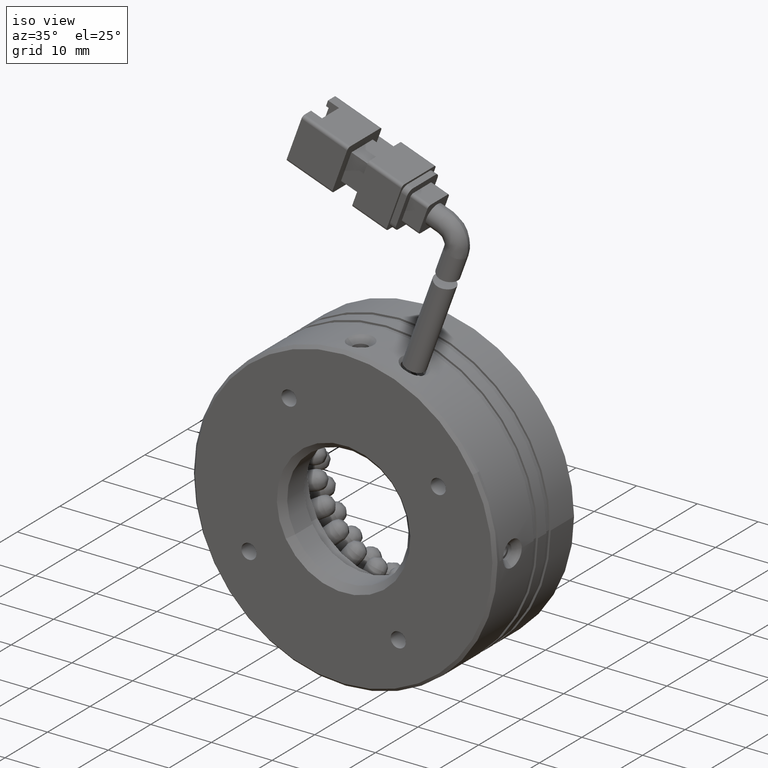
[diagram: clean part render]
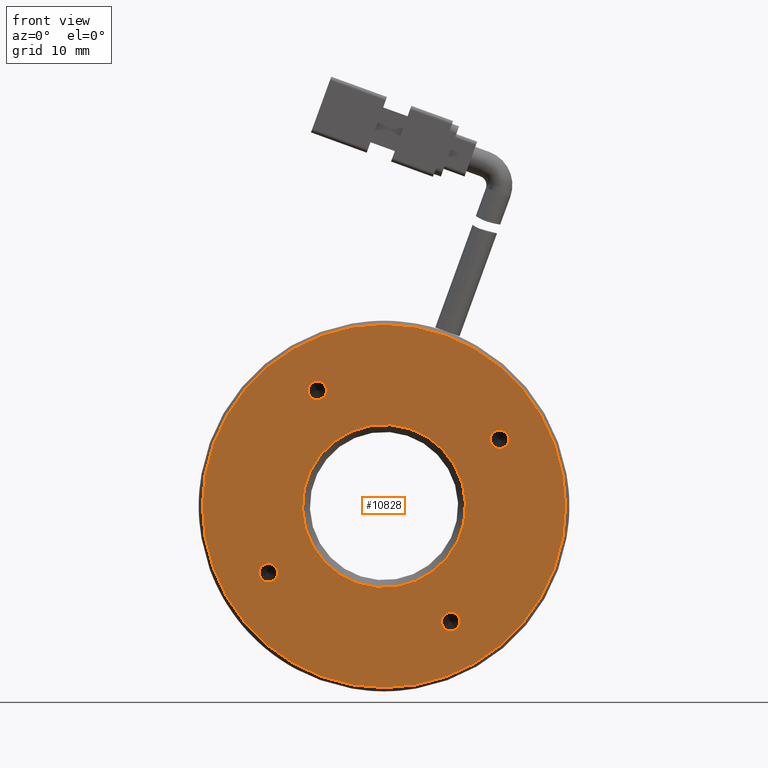
[diagram: tour spotlight — one face highlighted and labeled with its STEP entity id]
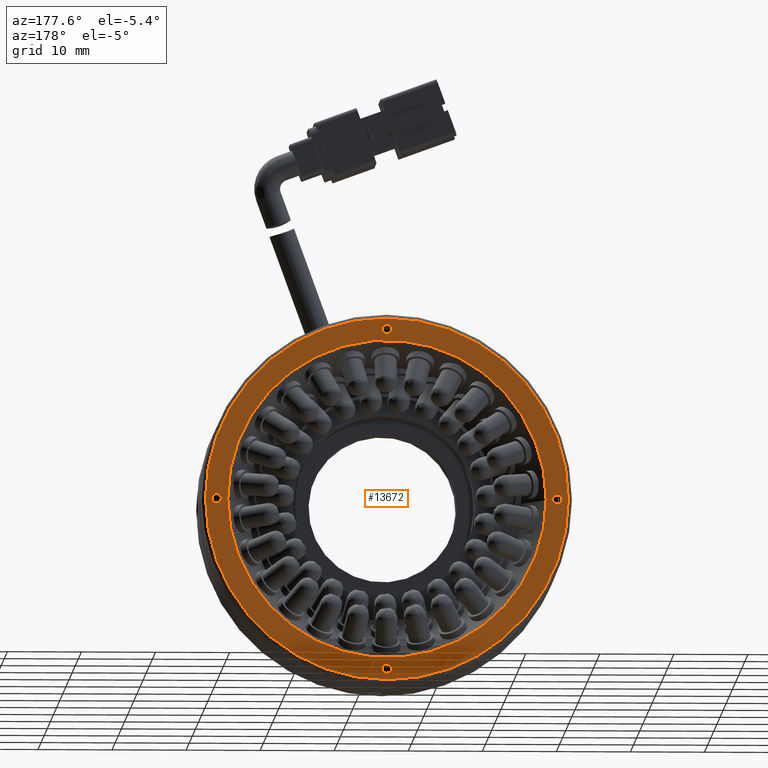
[diagram: tour spotlight — one face highlighted and labeled with its STEP entity id]
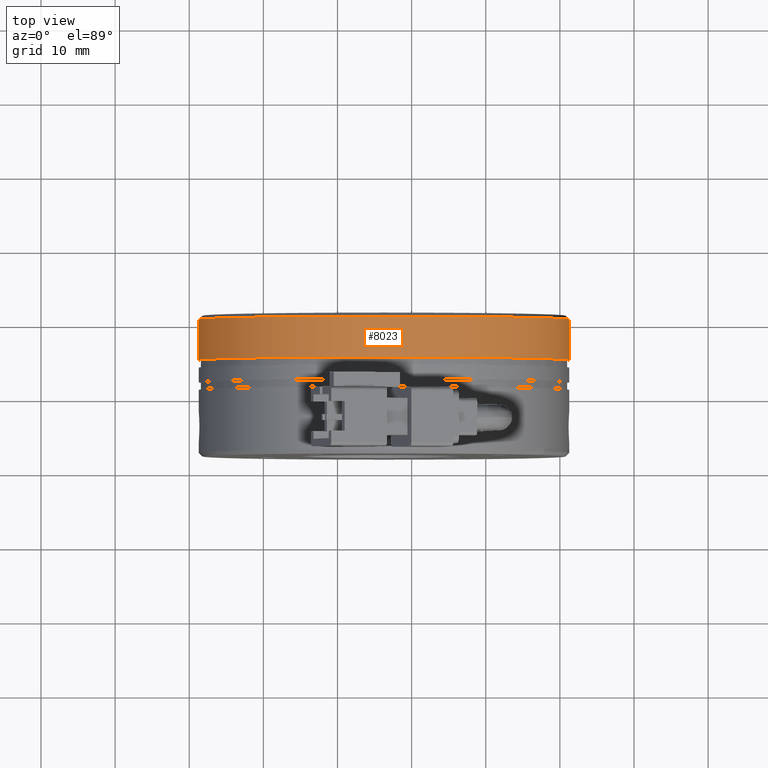
[diagram: tour spotlight — one face highlighted and labeled with its STEP entity id]
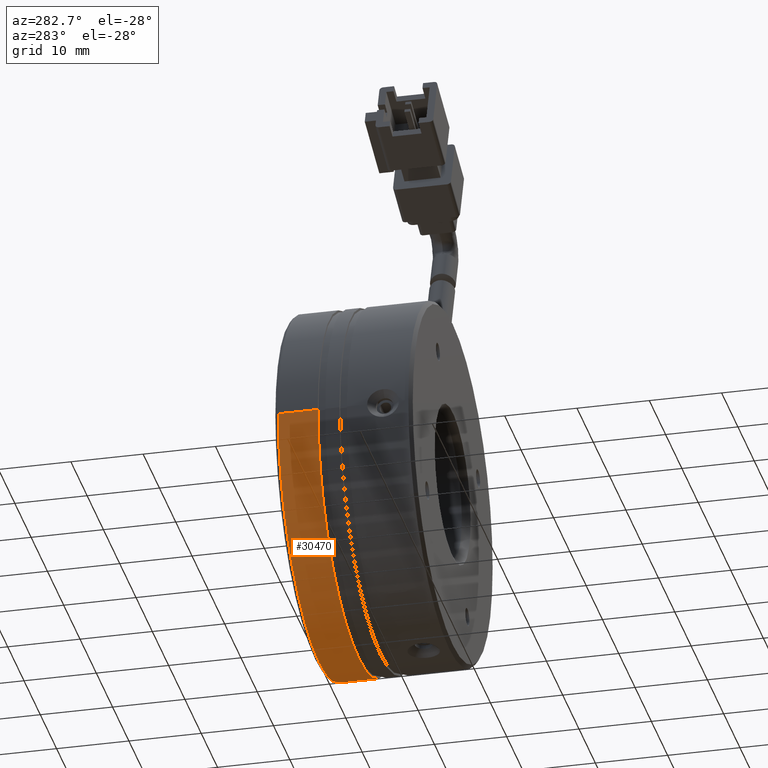
[diagram: tour spotlight — one face highlighted and labeled with its STEP entity id]
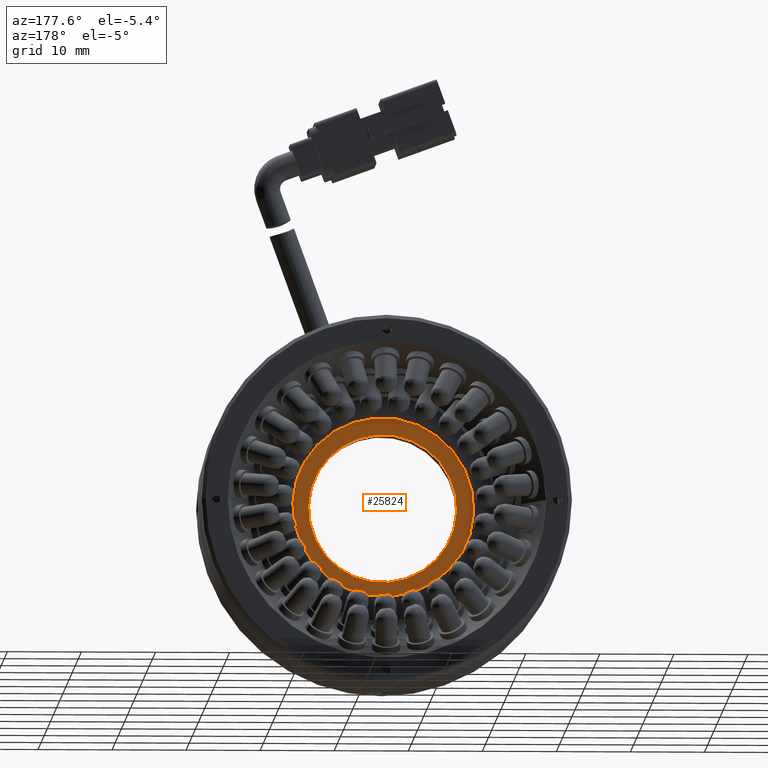
[diagram: tour spotlight — one face highlighted and labeled with its STEP entity id]
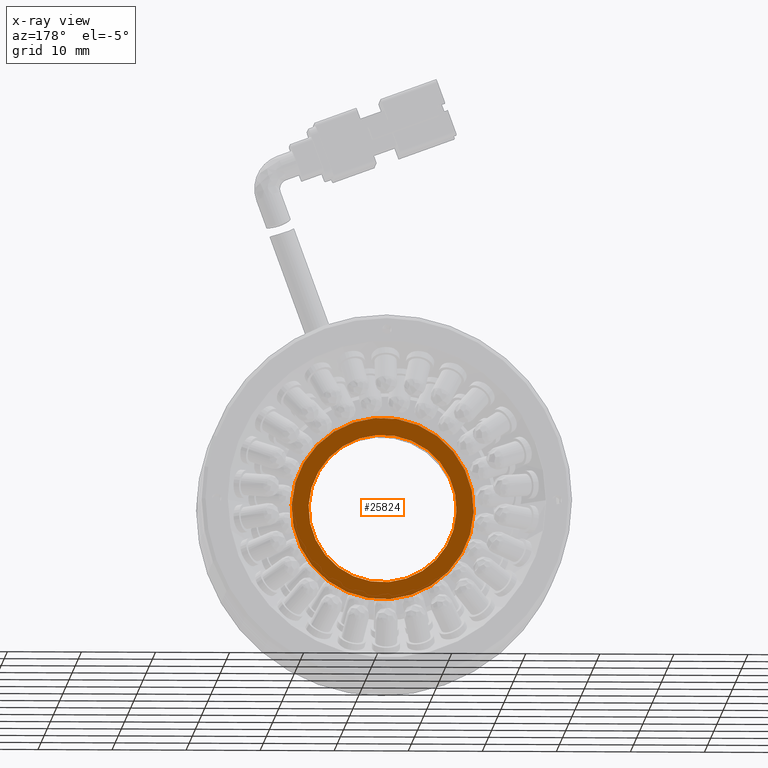
[diagram: x-ray of the same camera — body ghosted, this tour face saturated]
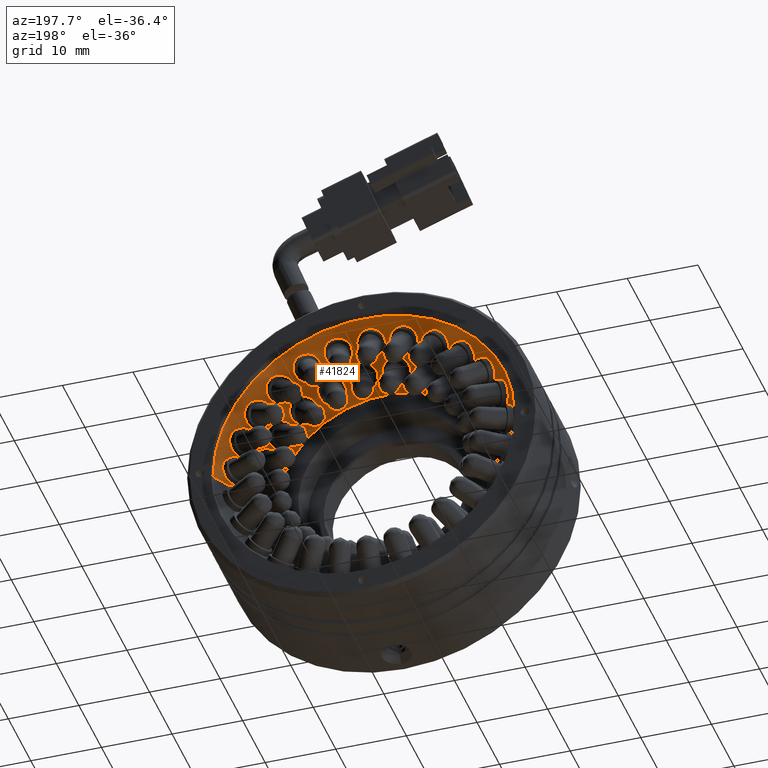
[diagram: tour spotlight — one face highlighted and labeled with its STEP entity id]
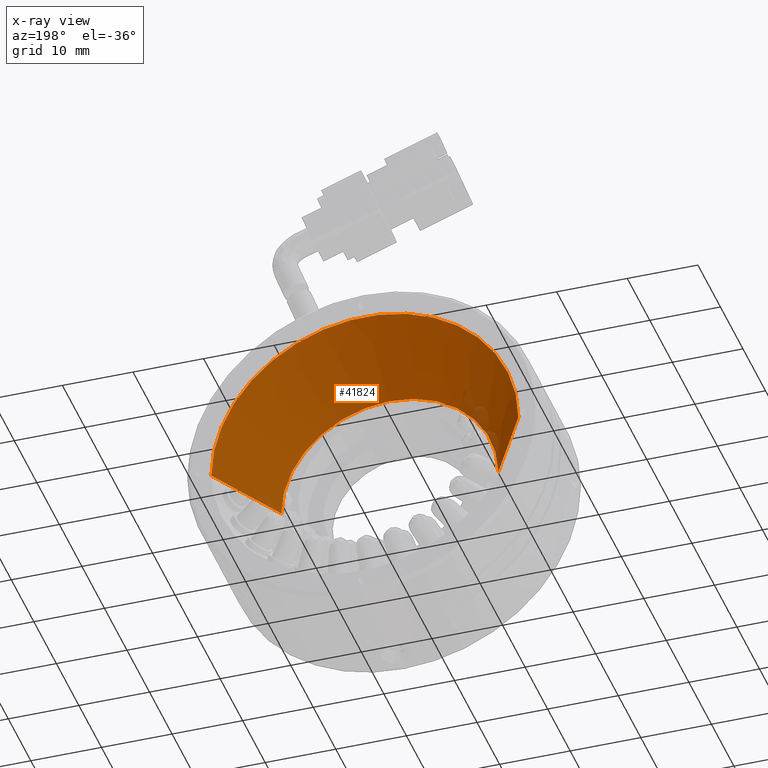
[diagram: x-ray of the same camera — body ghosted, this tour face saturated]
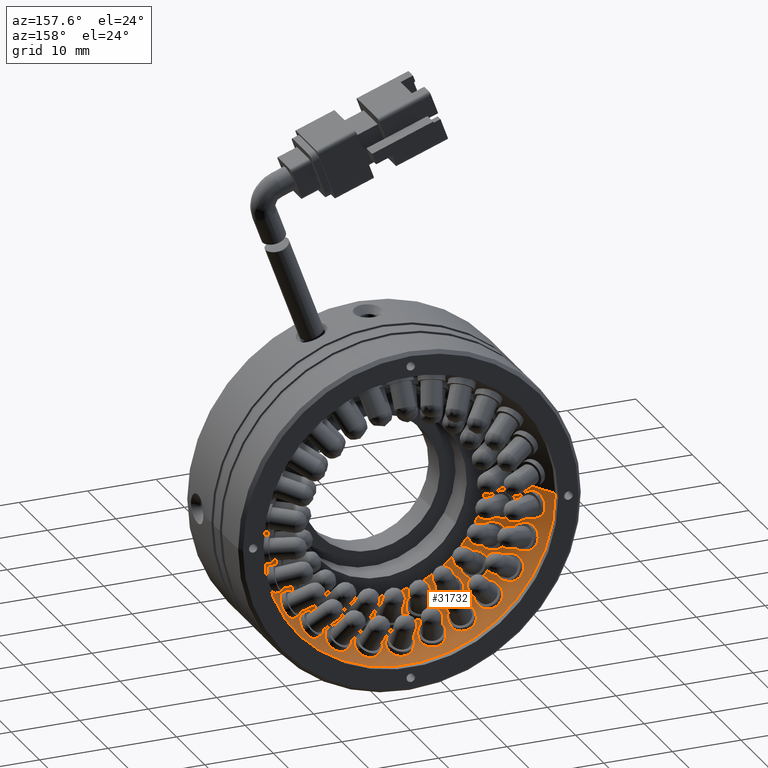
[diagram: tour spotlight — one face highlighted and labeled with its STEP entity id]
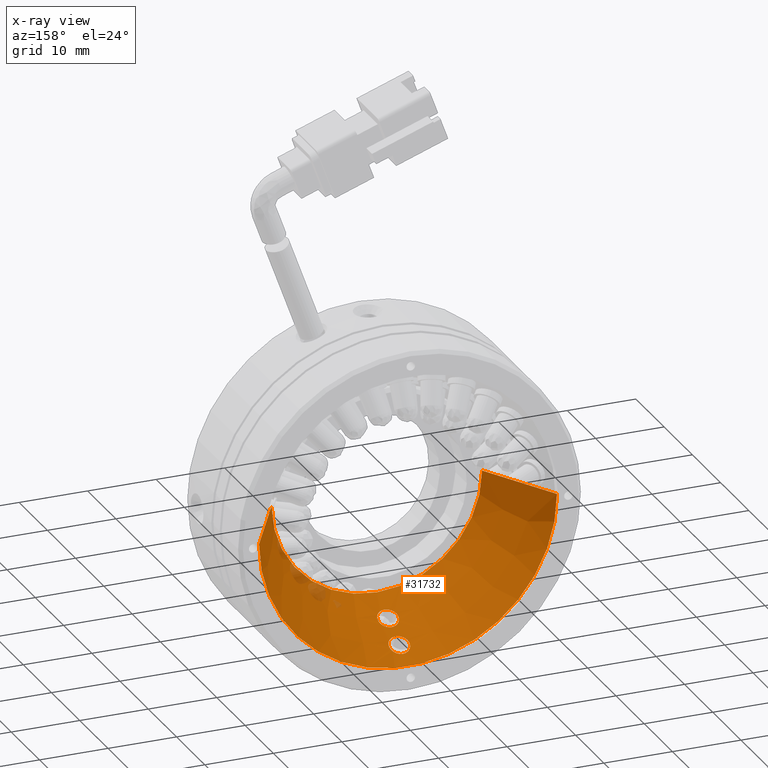
[diagram: x-ray of the same camera — body ghosted, this tour face saturated]
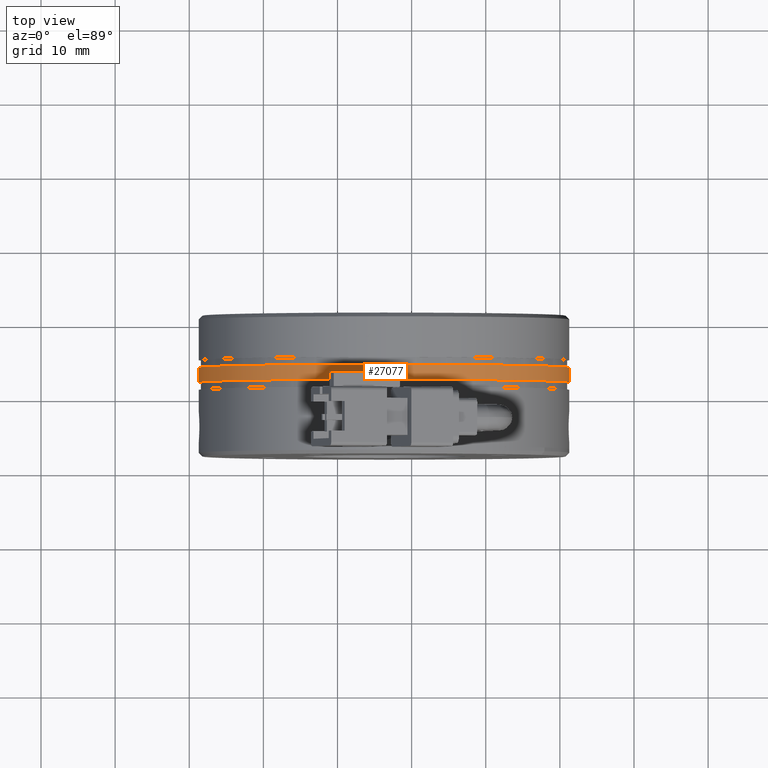
[diagram: tour spotlight — one face highlighted and labeled with its STEP entity id]
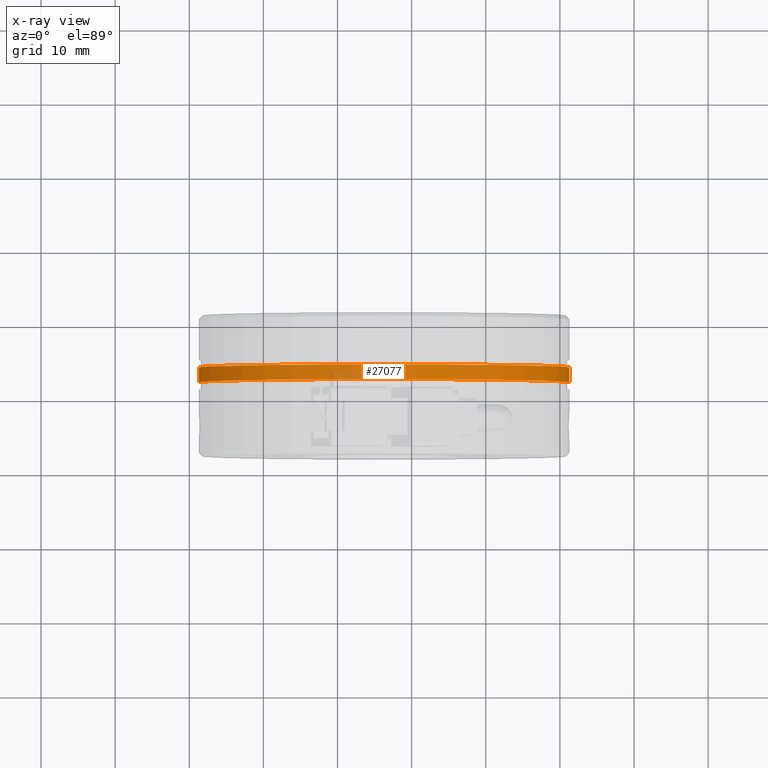
[diagram: x-ray of the same camera — body ghosted, this tour face saturated]
A machine part: a face-by-face anatomy tour. The part has 1066 B-rep faces; the first image is the clean iso view, then the 8 largest visible faces are spotlighted one at a time (largest first), each with its STEP entity span.

Face 1 — front view, entity #10828. In plain terms, the highlighted planar face has unit normal (-0, 1, -0).
Definition (entity closure, byte-faithful):
#523 = CIRCLE ( 'NONE', #30386, 24.50000000000002100 ) ;
#1849 = PLANE ( 'NONE',  #39710 ) ;
#2099 = EDGE_CURVE ( 'NONE', #39734, #33890, #27103, .T. ) ;
#2183 = EDGE_CURVE ( 'NONE', #15105, #7550, #6086, .T. ) ;
#2213 = DIRECTION ( 'NONE',  ( -1.295944383605204800E-016, 1.000000000000000000, -6.505213034913035200E-017 ) ) ;
#2899 = EDGE_CURVE ( 'NONE', #30823, #49829, #13136, .T. ) ;
#3285 = ORIENTED_EDGE ( 'NONE', *, *, #47282, .F. ) ;
#3597 = CARTESIAN_POINT ( 'NONE',  ( -93.72635228848822900, 2.127531206657417200, -6.071532165918824800E-015 ) ) ;
#3754 = CARTESIAN_POINT ( 'NONE',  ( -102.1013522884880900, 2.127531206657419000, 14.50592551338943900 ) ) ;
#3939 = AXIS2_PLACEMENT_3D ( 'NONE', #16863, #44453, #20826 ) ;
#4573 = CARTESIAN_POINT ( 'NONE',  ( -102.7263522884880900, 2.127531206657419000, 15.58845726811998800 ) ) ;
#5351 = ORIENTED_EDGE ( 'NONE', *, *, #13765, .F. ) ;
#5872 = AXIS2_PLACEMENT_3D ( 'NONE', #25894, #21402, #20947 ) ;
#6086 = CIRCLE ( 'NONE', #5872, 1.250000000000000400 ) ;
#7231 = DIRECTION ( 'NONE',  ( 0.5000000000000002200, 0.0000000000000000000, -0.8660254037844383700 ) ) ;
#7247 = AXIS2_PLACEMENT_3D ( 'NONE', #3597, #31132, #7541 ) ;
#7338 = FACE_OUTER_BOUND ( 'NONE', #21184, .T. ) ;
#7541 = DIRECTION ( 'NONE',  ( 0.8660254037844379300, 1.182766006347823100E-016, 0.5000000000000010000 ) ) ;
#7546 = ORIENTED_EDGE ( 'NONE', *, *, #49589, .F. ) ;
#7550 = VERTEX_POINT ( 'NONE', #27909 ) ;
#7575 = VERTEX_POINT ( 'NONE', #8778 ) ;
#8218 = DIRECTION ( 'NONE',  ( 1.692084345523365600E-017, -1.000000000000000000, -1.098056619398169000E-031 ) ) ;
#8220 = CARTESIAN_POINT ( 'NONE',  ( -77.51289502036834700, 2.127531206657421200, 7.917468245269470000 ) ) ;
#8276 = CIRCLE ( 'NONE', #39085, 1.250000000000000400 ) ;
#8778 = CARTESIAN_POINT ( 'NONE',  ( -85.35135228848827200, 2.127531206657419000, -14.50592551338938400 ) ) ;
#8951 = AXIS2_PLACEMENT_3D ( 'NONE', #20331, #47851, #24330 ) ;
#10362 = DIRECTION ( 'NONE',  ( -1.229783673277240500E-016, 1.000000000000000000, -6.123233995736756200E-017 ) ) ;
#10564 = CARTESIAN_POINT ( 'NONE',  ( -103.2526317301170500, 2.127531206657415900, -5.500000000000015100 ) ) ;
#10828 = ADVANCED_FACE ( 'NONE', ( #38804, #7338, #28296, #47950, #37586, #27035 ), #1849, .F. ) ;
#12030 = CARTESIAN_POINT ( 'NONE',  ( -84.20007284685941300, 2.127531206657418600, 5.500000000000005300 ) ) ;
#12410 = CARTESIAN_POINT ( 'NONE',  ( -78.13789502036834700, 2.127531206657421200, 9.000000000000017800 ) ) ;
#13136 = CIRCLE ( 'NONE', #35632, 1.250000000000000400 ) ;
#13765 = EDGE_CURVE ( 'NONE', #7550, #15105, #8276, .T. ) ;
#15105 = VERTEX_POINT ( 'NONE', #36770 ) ;
#15258 = DIRECTION ( 'NONE',  ( 1.193513842782216900E-016, -1.000000000000000000, 5.913830031739125400E-017 ) ) ;
#15344 = ORIENTED_EDGE ( 'NONE', *, *, #16125, .F. ) ;
#15487 = EDGE_CURVE ( 'NONE', #38138, #45460, #28268, .T. ) ;
#15958 = EDGE_LOOP ( 'NONE', ( #7546, #20609 ) ) ;
#16125 = EDGE_CURVE ( 'NONE', #49829, #30823, #41130, .T. ) ;
#16359 = DIRECTION ( 'NONE',  ( 0.5000000000000002200, 0.0000000000000000000, -0.8660254037844383700 ) ) ;
#16476 = DIRECTION ( 'NONE',  ( 1.692084345523365600E-017, -1.000000000000000000, -1.098056619398169000E-031 ) ) ;
#16791 = CARTESIAN_POINT ( 'NONE',  ( -72.50872989576949100, 2.127531206657423900, 12.25000000000002800 ) ) ;
#16863 = CARTESIAN_POINT ( 'NONE',  ( -93.72635228848822900, 2.127531206657420300, -6.039006100744259700E-015 ) ) ;
#20331 = CARTESIAN_POINT ( 'NONE',  ( -84.72635228848827200, 2.127531206657419000, -15.58845726811993300 ) ) ;
#20609 = ORIENTED_EDGE ( 'NONE', *, *, #38412, .F. ) ;
#20826 = DIRECTION ( 'NONE',  ( -0.8660254037844381500, -1.416100796715759600E-016, -0.5000000000000008900 ) ) ;
#20947 = DIRECTION ( 'NONE',  ( 0.5000000000000002200, 0.0000000000000000000, -0.8660254037844383700 ) ) ;
#21184 = EDGE_LOOP ( 'NONE', ( #3285, #33796 ) ) ;
#21402 = DIRECTION ( 'NONE',  ( 1.692084345523365600E-017, -1.000000000000000000, -1.098056619398169000E-031 ) ) ;
#21563 = DIRECTION ( 'NONE',  ( 0.5000000000000002200, 0.0000000000000000000, -0.8660254037844383700 ) ) ;
#21737 = DIRECTION ( 'NONE',  ( 1.692084345523365600E-017, -1.000000000000000000, -1.098056619398169000E-031 ) ) ;
#21914 = CARTESIAN_POINT ( 'NONE',  ( -109.3148095566081400, 2.127531206657417200, -9.000000000000035500 ) ) ;
#22665 = AXIS2_PLACEMENT_3D ( 'NONE', #32873, #32821, #33091 ) ;
#23386 = DIRECTION ( 'NONE',  ( 0.8660254037844379300, 1.182766006347823100E-016, 0.5000000000000010000 ) ) ;
#23718 = CARTESIAN_POINT ( 'NONE',  ( -93.72635228848822900, 2.127531206657417200, -6.071532165918824800E-015 ) ) ;
#23719 = AXIS2_PLACEMENT_3D ( 'NONE', #12410, #40010, #16359 ) ;
#24330 = DIRECTION ( 'NONE',  ( 0.4999999999999997200, 0.0000000000000000000, -0.8660254037844387100 ) ) ;
#25318 = VERTEX_POINT ( 'NONE', #38718 ) ;
#25742 = CARTESIAN_POINT ( 'NONE',  ( -93.72635228848822900, 2.127531206657420300, -6.039006100744259700E-015 ) ) ;
#25894 = CARTESIAN_POINT ( 'NONE',  ( -109.3148095566081400, 2.127531206657417200, -9.000000000000035500 ) ) ;
#25926 = CARTESIAN_POINT ( 'NONE',  ( -103.3513522884880900, 2.127531206657419000, 16.67098902285053800 ) ) ;
#27035 = FACE_BOUND ( 'NONE', #44846, .T. ) ;
#27103 = CIRCLE ( 'NONE', #22665, 1.250000000000000400 ) ;
#27909 = CARTESIAN_POINT ( 'NONE',  ( -108.6898095566081400, 2.127531206657417200, -10.08253175473058300 ) ) ;
#28110 = ORIENTED_EDGE ( 'NONE', *, *, #15487, .F. ) ;
#28268 = CIRCLE ( 'NONE', #34228, 10.99999999999999800 ) ;
#28296 = FACE_BOUND ( 'NONE', #40105, .T. ) ;
#29711 = DIRECTION ( 'NONE',  ( -0.8660254037844381500, -1.416100796715759600E-016, -0.5000000000000008900 ) ) ;
#29714 = CIRCLE ( 'NONE', #3939, 24.50000000000002100 ) ;
#29893 = CARTESIAN_POINT ( 'NONE',  ( -78.76289502036834700, 2.127531206657421200, 10.08253175473056700 ) ) ;
#30386 = AXIS2_PLACEMENT_3D ( 'NONE', #25742, #2213, #29711 ) ;
#30823 = VERTEX_POINT ( 'NONE', #3754 ) ;
#31132 = DIRECTION ( 'NONE',  ( 1.193513842782216900E-016, -1.000000000000000000, 5.913830031739125400E-017 ) ) ;
#32821 = DIRECTION ( 'NONE',  ( 1.692084345523365600E-017, -1.000000000000000000, -1.098056619398169000E-031 ) ) ;
#32873 = CARTESIAN_POINT ( 'NONE',  ( -78.13789502036834700, 2.127531206657421200, 9.000000000000017800 ) ) ;
#33048 = CIRCLE ( 'NONE', #8951, 1.250000000000001800 ) ;
#33091 = DIRECTION ( 'NONE',  ( 0.5000000000000002200, 0.0000000000000000000, -0.8660254037844383700 ) ) ;
#33796 = ORIENTED_EDGE ( 'NONE', *, *, #38046, .F. ) ;
#33890 = VERTEX_POINT ( 'NONE', #8220 ) ;
#33980 = CARTESIAN_POINT ( 'NONE',  ( -72.07571719387726700, 2.127531206657423000, 12.50000000000002800 ) ) ;
#34228 = AXIS2_PLACEMENT_3D ( 'NONE', #23718, #15258, #23386 ) ;
#35632 = AXIS2_PLACEMENT_3D ( 'NONE', #4573, #8218, #7231 ) ;
#36564 = ORIENTED_EDGE ( 'NONE', *, *, #2183, .F. ) ;
#36657 = ORIENTED_EDGE ( 'NONE', *, *, #37538, .F. ) ;
#36770 = CARTESIAN_POINT ( 'NONE',  ( -109.9398095566081400, 2.127531206657417200, -7.917468245269487800 ) ) ;
#37538 = EDGE_CURVE ( 'NONE', #33890, #39734, #49201, .T. ) ;
#37586 = FACE_BOUND ( 'NONE', #50847, .T. ) ;
#37720 = ORIENTED_EDGE ( 'NONE', *, *, #2899, .F. ) ;
#37981 = DIRECTION ( 'NONE',  ( -0.8660254037844380400, -1.371185602004270100E-016, -0.5000000000000010000 ) ) ;
#38046 = EDGE_CURVE ( 'NONE', #48556, #50466, #523, .T. ) ;
#38138 = VERTEX_POINT ( 'NONE', #10564 ) ;
#38412 = EDGE_CURVE ( 'NONE', #7575, #25318, #33048, .T. ) ;
#38432 = AXIS2_PLACEMENT_3D ( 'NONE', #40143, #16476, #44095 ) ;
#38718 = CARTESIAN_POINT ( 'NONE',  ( -84.10135228848827200, 2.127531206657419000, -16.67098902285048100 ) ) ;
#38804 = FACE_BOUND ( 'NONE', #46301, .T. ) ;
#39085 = AXIS2_PLACEMENT_3D ( 'NONE', #21914, #21737, #21563 ) ;
#39710 = AXIS2_PLACEMENT_3D ( 'NONE', #33980, #10362, #37981 ) ;
#39734 = VERTEX_POINT ( 'NONE', #29893 ) ;
#40010 = DIRECTION ( 'NONE',  ( 1.692084345523365600E-017, -1.000000000000000000, -1.098056619398169000E-031 ) ) ;
#40105 = EDGE_LOOP ( 'NONE', ( #36657, #41341 ) ) ;
#40143 = CARTESIAN_POINT ( 'NONE',  ( -84.72635228848827200, 2.127531206657419000, -15.58845726811993300 ) ) ;
#40270 = ORIENTED_EDGE ( 'NONE', *, *, #47617, .F. ) ;
#40920 = AXIS2_PLACEMENT_3D ( 'NONE', #48588, #48581, #48424 ) ;
#40990 = CIRCLE ( 'NONE', #38432, 1.250000000000001800 ) ;
#41130 = CIRCLE ( 'NONE', #40920, 1.250000000000000400 ) ;
#41341 = ORIENTED_EDGE ( 'NONE', *, *, #2099, .F. ) ;
#41996 = CIRCLE ( 'NONE', #7247, 10.99999999999999800 ) ;
#44095 = DIRECTION ( 'NONE',  ( 0.4999999999999997200, 0.0000000000000000000, -0.8660254037844387100 ) ) ;
#44453 = DIRECTION ( 'NONE',  ( -1.295944383605204800E-016, 1.000000000000000000, -6.505213034913035200E-017 ) ) ;
#44846 = EDGE_LOOP ( 'NONE', ( #37720, #15344 ) ) ;
#45460 = VERTEX_POINT ( 'NONE', #12030 ) ;
#45606 = CARTESIAN_POINT ( 'NONE',  ( -114.9439746812069700, 2.127531206657417200, -12.25000000000003900 ) ) ;
#46301 = EDGE_LOOP ( 'NONE', ( #40270, #28110 ) ) ;
#47282 = EDGE_CURVE ( 'NONE', #50466, #48556, #29714, .T. ) ;
#47617 = EDGE_CURVE ( 'NONE', #45460, #38138, #41996, .T. ) ;
#47851 = DIRECTION ( 'NONE',  ( 1.692084345523365600E-017, -1.000000000000000000, -1.098056619398169000E-031 ) ) ;
#47950 = FACE_BOUND ( 'NONE', #15958, .T. ) ;
#48424 = DIRECTION ( 'NONE',  ( 0.5000000000000002200, 0.0000000000000000000, -0.8660254037844383700 ) ) ;
#48556 = VERTEX_POINT ( 'NONE', #16791 ) ;
#48581 = DIRECTION ( 'NONE',  ( 1.692084345523365600E-017, -1.000000000000000000, -1.098056619398169000E-031 ) ) ;
#48588 = CARTESIAN_POINT ( 'NONE',  ( -102.7263522884880900, 2.127531206657419000, 15.58845726811998800 ) ) ;
#49201 = CIRCLE ( 'NONE', #23719, 1.250000000000000400 ) ;
#49589 = EDGE_CURVE ( 'NONE', #25318, #7575, #40990, .T. ) ;
#49829 = VERTEX_POINT ( 'NONE', #25926 ) ;
#50466 = VERTEX_POINT ( 'NONE', #45606 ) ;
#50847 = EDGE_LOOP ( 'NONE', ( #5351, #36564 ) ) ;

Face 2 — auxiliary view, entity #13672. In plain terms, the highlighted planar face has unit normal (0, -1, 0).
Definition (entity closure, byte-faithful):
#319 = CIRCLE ( 'NONE', #33123, 0.6250000000000005600 ) ;
#696 = FACE_BOUND ( 'NONE', #25276, .T. ) ;
#2497 = CIRCLE ( 'NONE', #30484, 21.50000000000000400 ) ;
#2636 = DIRECTION ( 'NONE',  ( 0.0000000000000000000, 0.0000000000000000000, 1.000000000000000000 ) ) ;
#2719 = CIRCLE ( 'NONE', #33803, 0.6249999999999987800 ) ;
#2991 = VERTEX_POINT ( 'NONE', #28826 ) ;
#4315 = CARTESIAN_POINT ( 'NONE',  ( -93.72635228848822900, 21.12753120665741900, -23.00000000000000000 ) ) ;
#4463 = ORIENTED_EDGE ( 'NONE', *, *, #39347, .F. ) ;
#5008 = ORIENTED_EDGE ( 'NONE', *, *, #49524, .T. ) ;
#5613 = EDGE_CURVE ( 'NONE', #26834, #9379, #37172, .T. ) ;
#6153 = EDGE_LOOP ( 'NONE', ( #24268, #5008 ) ) ;
#6748 = VERTEX_POINT ( 'NONE', #32329 ) ;
#7855 = CARTESIAN_POINT ( 'NONE',  ( -93.72635228848822900, 21.12753120665741900, 0.0000000000000000000 ) ) ;
#8208 = EDGE_CURVE ( 'NONE', #6748, #2991, #32871, .T. ) ;
#8237 = DIRECTION ( 'NONE',  ( 0.0000000000000000000, 0.0000000000000000000, 1.000000000000000000 ) ) ;
#9012 = CARTESIAN_POINT ( 'NONE',  ( -116.7263522884882400, 21.12753120665741900, 0.6250000000000791600 ) ) ;
#9135 = CARTESIAN_POINT ( 'NONE',  ( -93.72635228848822900, 21.12753120665741900, -22.37500000000000000 ) ) ;
#9379 = VERTEX_POINT ( 'NONE', #9135 ) ;
#10029 = AXIS2_PLACEMENT_3D ( 'NONE', #37176, #13499, #41138 ) ;
#10200 = VERTEX_POINT ( 'NONE', #9012 ) ;
#10687 = CIRCLE ( 'NONE', #10029, 0.6249999999999987800 ) ;
#11108 = FACE_BOUND ( 'NONE', #15744, .T. ) ;
#11692 = VERTEX_POINT ( 'NONE', #41361 ) ;
#11796 = DIRECTION ( 'NONE',  ( -1.000000000000000000, -1.613696256722610900E-016, 0.0000000000000000000 ) ) ;
#11903 = ORIENTED_EDGE ( 'NONE', *, *, #16278, .T. ) ;
#12758 = CIRCLE ( 'NONE', #29212, 24.50000000000002100 ) ;
#12961 = CIRCLE ( 'NONE', #22115, 0.6250000000000005600 ) ;
#12974 = DIRECTION ( 'NONE',  ( 0.0000000000000000000, -1.000000000000000000, 0.0000000000000000000 ) ) ;
#13499 = DIRECTION ( 'NONE',  ( 0.0000000000000000000, -1.000000000000000000, 0.0000000000000000000 ) ) ;
#13608 = AXIS2_PLACEMENT_3D ( 'NONE', #19179, #46710, #23175 ) ;
#13672 = ADVANCED_FACE ( 'NONE', ( #11108, #41347, #696, #21582, #30824, #20310 ), #28134, .F. ) ;
#13835 = CARTESIAN_POINT ( 'NONE',  ( -116.7263522884882400, 21.12753120665741900, 8.030407079339205500E-014 ) ) ;
#14490 = CIRCLE ( 'NONE', #42543, 0.6249999999999987800 ) ;
#14728 = EDGE_LOOP ( 'NONE', ( #44953, #11903 ) ) ;
#15744 = EDGE_LOOP ( 'NONE', ( #40575, #24620 ) ) ;
#16205 = DIRECTION ( 'NONE',  ( 1.040834085586084300E-016, -1.000000000000000000, -3.469446951953613600E-017 ) ) ;
#16278 = EDGE_CURVE ( 'NONE', #11692, #38770, #14490, .T. ) ;
#16292 = CARTESIAN_POINT ( 'NONE',  ( -69.22635228848821500, 21.12753120665742300, 1.734723475976778100E-017 ) ) ;
#16306 = DIRECTION ( 'NONE',  ( 0.0000000000000000000, -1.000000000000000000, 0.0000000000000000000 ) ) ;
#16648 = CARTESIAN_POINT ( 'NONE',  ( -118.2263522884882600, 21.12753120665741600, 3.039674445269584900E-015 ) ) ;
#17322 = CARTESIAN_POINT ( 'NONE',  ( -116.7263522884882400, 21.12753120665741900, -0.6249999999999185100 ) ) ;
#17826 = DIRECTION ( 'NONE',  ( 0.0000000000000000000, 0.0000000000000000000, 1.000000000000000000 ) ) ;
#18027 = CARTESIAN_POINT ( 'NONE',  ( -93.72635228848822900, 21.12753120665741900, -23.62500000000000000 ) ) ;
#18474 = ORIENTED_EDGE ( 'NONE', *, *, #45291, .F. ) ;
#19019 = CIRCLE ( 'NONE', #13608, 24.50000000000002100 ) ;
#19179 = CARTESIAN_POINT ( 'NONE',  ( -93.72635228848822900, 21.12753120665741900, 1.734723475976778100E-017 ) ) ;
#19398 = ORIENTED_EDGE ( 'NONE', *, *, #5613, .T. ) ;
#20310 = FACE_BOUND ( 'NONE', #14728, .T. ) ;
#20807 = EDGE_CURVE ( 'NONE', #46258, #10200, #2719, .T. ) ;
#21263 = AXIS2_PLACEMENT_3D ( 'NONE', #50581, #50406, #50246 ) ;
#21582 = FACE_BOUND ( 'NONE', #50128, .T. ) ;
#22115 = AXIS2_PLACEMENT_3D ( 'NONE', #4315, #31849, #8237 ) ;
#22165 = EDGE_CURVE ( 'NONE', #10200, #46258, #38194, .T. ) ;
#23175 = DIRECTION ( 'NONE',  ( 1.000000000000000000, 1.416100796715759600E-016, 0.0000000000000000000 ) ) ;
#23326 = CARTESIAN_POINT ( 'NONE',  ( -93.72635228848822900, 21.12753120665741900, 23.62500000000000000 ) ) ;
#24268 = ORIENTED_EDGE ( 'NONE', *, *, #36141, .T. ) ;
#24620 = ORIENTED_EDGE ( 'NONE', *, *, #8208, .F. ) ;
#24871 = EDGE_CURVE ( 'NONE', #9379, #26834, #12961, .T. ) ;
#25008 = VERTEX_POINT ( 'NONE', #16648 ) ;
#25194 = CIRCLE ( 'NONE', #38182, 0.6250000000000005600 ) ;
#25276 = EDGE_LOOP ( 'NONE', ( #28376, #19398 ) ) ;
#25374 = VERTEX_POINT ( 'NONE', #23326 ) ;
#26188 = DIRECTION ( 'NONE',  ( 0.0000000000000000000, -1.000000000000000000, 0.0000000000000000000 ) ) ;
#26720 = DIRECTION ( 'NONE',  ( 1.000000000000000000, 1.224646799147351700E-016, 0.0000000000000000000 ) ) ;
#26834 = VERTEX_POINT ( 'NONE', #18027 ) ;
#26883 = CARTESIAN_POINT ( 'NONE',  ( -68.72635228848822900, 21.12753120665742700, 0.0000000000000000000 ) ) ;
#27033 = DIRECTION ( 'NONE',  ( 1.224646799147351700E-016, -1.000000000000000000, 0.0000000000000000000 ) ) ;
#28134 = PLANE ( 'NONE',  #28505 ) ;
#28376 = ORIENTED_EDGE ( 'NONE', *, *, #24871, .T. ) ;
#28505 = AXIS2_PLACEMENT_3D ( 'NONE', #26883, #27033, #26720 ) ;
#28826 = CARTESIAN_POINT ( 'NONE',  ( -115.2263522884882400, 21.12753120665741600, 0.0000000000000000000 ) ) ;
#29212 = AXIS2_PLACEMENT_3D ( 'NONE', #39861, #16205, #43810 ) ;
#30484 = AXIS2_PLACEMENT_3D ( 'NONE', #7855, #35415, #11796 ) ;
#30824 = FACE_BOUND ( 'NONE', #6153, .T. ) ;
#31849 = DIRECTION ( 'NONE',  ( 0.0000000000000000000, -1.000000000000000000, 0.0000000000000000000 ) ) ;
#32329 = CARTESIAN_POINT ( 'NONE',  ( -72.22635228848822900, 21.12753120665742300, 2.632990618166810000E-015 ) ) ;
#32506 = CARTESIAN_POINT ( 'NONE',  ( -93.72635228848822900, 21.12753120665741900, 22.37500000000000000 ) ) ;
#32599 = ORIENTED_EDGE ( 'NONE', *, *, #22165, .T. ) ;
#32675 = ORIENTED_EDGE ( 'NONE', *, *, #20807, .T. ) ;
#32871 = CIRCLE ( 'NONE', #21263, 21.50000000000000400 ) ;
#33123 = AXIS2_PLACEMENT_3D ( 'NONE', #39956, #16306, #43917 ) ;
#33803 = AXIS2_PLACEMENT_3D ( 'NONE', #13835, #41474, #17826 ) ;
#35415 = DIRECTION ( 'NONE',  ( -1.224646799147351700E-016, 1.000000000000000000, -0.0000000000000000000 ) ) ;
#36141 = EDGE_CURVE ( 'NONE', #25374, #43145, #25194, .T. ) ;
#36611 = CARTESIAN_POINT ( 'NONE',  ( -116.7263522884882400, 21.12753120665741900, 8.030407079339205500E-014 ) ) ;
#37172 = CIRCLE ( 'NONE', #40094, 0.6250000000000005600 ) ;
#37176 = CARTESIAN_POINT ( 'NONE',  ( -70.72635228848824300, 21.12753120665742700, -2.409122123801762900E-013 ) ) ;
#38182 = AXIS2_PLACEMENT_3D ( 'NONE', #49683, #26188, #2636 ) ;
#38194 = CIRCLE ( 'NONE', #44361, 0.6249999999999987800 ) ;
#38770 = VERTEX_POINT ( 'NONE', #43209 ) ;
#38931 = VERTEX_POINT ( 'NONE', #16292 ) ;
#39347 = EDGE_CURVE ( 'NONE', #38931, #25008, #19019, .T. ) ;
#39861 = CARTESIAN_POINT ( 'NONE',  ( -93.72635228848822900, 21.12753120665741900, 1.734723475976778100E-017 ) ) ;
#39956 = CARTESIAN_POINT ( 'NONE',  ( -93.72635228848822900, 21.12753120665741900, 23.00000000000000000 ) ) ;
#40094 = AXIS2_PLACEMENT_3D ( 'NONE', #48392, #50661, #49825 ) ;
#40562 = DIRECTION ( 'NONE',  ( 0.0000000000000000000, 0.0000000000000000000, 1.000000000000000000 ) ) ;
#40575 = ORIENTED_EDGE ( 'NONE', *, *, #44727, .F. ) ;
#41138 = DIRECTION ( 'NONE',  ( 0.0000000000000000000, 0.0000000000000000000, 1.000000000000000000 ) ) ;
#41347 = FACE_OUTER_BOUND ( 'NONE', #46084, .T. ) ;
#41361 = CARTESIAN_POINT ( 'NONE',  ( -70.72635228848824300, 21.12753120665742700, -0.6250000000002397000 ) ) ;
#41474 = DIRECTION ( 'NONE',  ( 0.0000000000000000000, -1.000000000000000000, 0.0000000000000000000 ) ) ;
#42543 = AXIS2_PLACEMENT_3D ( 'NONE', #44138, #44128, #44021 ) ;
#43145 = VERTEX_POINT ( 'NONE', #32506 ) ;
#43209 = CARTESIAN_POINT ( 'NONE',  ( -70.72635228848824300, 21.12753120665742700, 0.6249999999997578600 ) ) ;
#43810 = DIRECTION ( 'NONE',  ( 1.000000000000000000, 1.416100796715759600E-016, 0.0000000000000000000 ) ) ;
#43917 = DIRECTION ( 'NONE',  ( 0.0000000000000000000, 0.0000000000000000000, 1.000000000000000000 ) ) ;
#44021 = DIRECTION ( 'NONE',  ( 0.0000000000000000000, 0.0000000000000000000, 1.000000000000000000 ) ) ;
#44128 = DIRECTION ( 'NONE',  ( 0.0000000000000000000, -1.000000000000000000, 0.0000000000000000000 ) ) ;
#44138 = CARTESIAN_POINT ( 'NONE',  ( -70.72635228848824300, 21.12753120665742700, -2.409122123801762900E-013 ) ) ;
#44361 = AXIS2_PLACEMENT_3D ( 'NONE', #36611, #12974, #40562 ) ;
#44727 = EDGE_CURVE ( 'NONE', #2991, #6748, #2497, .T. ) ;
#44953 = ORIENTED_EDGE ( 'NONE', *, *, #49748, .T. ) ;
#45291 = EDGE_CURVE ( 'NONE', #25008, #38931, #12758, .T. ) ;
#46084 = EDGE_LOOP ( 'NONE', ( #4463, #18474 ) ) ;
#46258 = VERTEX_POINT ( 'NONE', #17322 ) ;
#46710 = DIRECTION ( 'NONE',  ( 1.040834085586084300E-016, -1.000000000000000000, -3.469446951953613600E-017 ) ) ;
#48392 = CARTESIAN_POINT ( 'NONE',  ( -93.72635228848822900, 21.12753120665741900, -23.00000000000000000 ) ) ;
#49524 = EDGE_CURVE ( 'NONE', #43145, #25374, #319, .T. ) ;
#49683 = CARTESIAN_POINT ( 'NONE',  ( -93.72635228848822900, 21.12753120665741900, 23.00000000000000000 ) ) ;
#49748 = EDGE_CURVE ( 'NONE', #38770, #11692, #10687, .T. ) ;
#49825 = DIRECTION ( 'NONE',  ( 0.0000000000000000000, 0.0000000000000000000, 1.000000000000000000 ) ) ;
#50128 = EDGE_LOOP ( 'NONE', ( #32599, #32675 ) ) ;
#50246 = DIRECTION ( 'NONE',  ( -1.000000000000000000, -1.613696256722610900E-016, 0.0000000000000000000 ) ) ;
#50406 = DIRECTION ( 'NONE',  ( -1.224646799147351700E-016, 1.000000000000000000, -0.0000000000000000000 ) ) ;
#50581 = CARTESIAN_POINT ( 'NONE',  ( -93.72635228848822900, 21.12753120665741900, 0.0000000000000000000 ) ) ;
#50661 = DIRECTION ( 'NONE',  ( 0.0000000000000000000, -1.000000000000000000, 0.0000000000000000000 ) ) ;

Face 3 — top view, entity #8023. In plain terms, the highlighted cylindrical surface (partial cylindrical patch) has radius 25 mm, axis along (-0, 1, -0).
Definition (entity closure, byte-faithful):
#2122 = CYLINDRICAL_SURFACE ( 'NONE', #43367, 25.00000000000000700 ) ;
#3091 = DIRECTION ( 'NONE',  ( -1.000000000000000000, -1.387778780781445200E-016, 0.0000000000000000000 ) ) ;
#3578 = LINE ( 'NONE', #33090, #33762 ) ;
#3620 = DIRECTION ( 'NONE',  ( -1.000000000000000000, -1.387778780781445200E-016, 0.0000000000000000000 ) ) ;
#3768 = CARTESIAN_POINT ( 'NONE',  ( -118.7263522884882400, 15.12753120665741400, 0.0000000000000000000 ) ) ;
#4428 = EDGE_CURVE ( 'NONE', #29809, #23704, #3578, .T. ) ;
#8008 = LINE ( 'NONE', #44079, #27720 ) ;
#8023 = ADVANCED_FACE ( 'NONE', ( #27939 ), #2122, .T. ) ;
#8904 = ORIENTED_EDGE ( 'NONE', *, *, #24942, .F. ) ;
#9116 = DIRECTION ( 'NONE',  ( -1.224646799147351700E-016, 1.000000000000000000, -0.0000000000000000000 ) ) ;
#12350 = DIRECTION ( 'NONE',  ( -1.224646799147351700E-016, 1.000000000000000000, -0.0000000000000000000 ) ) ;
#12380 = CARTESIAN_POINT ( 'NONE',  ( -93.72635228848822900, 24.01734612509121500, 0.0000000000000000000 ) ) ;
#12629 = VERTEX_POINT ( 'NONE', #28597 ) ;
#16538 = CARTESIAN_POINT ( 'NONE',  ( -68.72635228848822900, 15.12753120665742100, 3.061616997868383000E-015 ) ) ;
#16904 = EDGE_CURVE ( 'NONE', #12629, #23704, #41930, .T. ) ;
#17899 = AXIS2_PLACEMENT_3D ( 'NONE', #50690, #27194, #3620 ) ;
#22756 = AXIS2_PLACEMENT_3D ( 'NONE', #30951, #30943, #30885 ) ;
#23704 = VERTEX_POINT ( 'NONE', #38561 ) ;
#24942 = EDGE_CURVE ( 'NONE', #45925, #12629, #8008, .T. ) ;
#27194 = DIRECTION ( 'NONE',  ( -1.224646799147351700E-016, 1.000000000000000000, -0.0000000000000000000 ) ) ;
#27720 = VECTOR ( 'NONE', #12350, 1000.000000000000000 ) ;
#27939 = FACE_OUTER_BOUND ( 'NONE', #46977, .T. ) ;
#28597 = CARTESIAN_POINT ( 'NONE',  ( -118.7263522884882400, 20.62753120665742700, 0.0000000000000000000 ) ) ;
#29809 = VERTEX_POINT ( 'NONE', #16538 ) ;
#30885 = DIRECTION ( 'NONE',  ( 1.000000000000000000, 1.387778780781445200E-016, 0.0000000000000000000 ) ) ;
#30943 = DIRECTION ( 'NONE',  ( -1.224646799147351500E-016, 1.000000000000000000, -0.0000000000000000000 ) ) ;
#30951 = CARTESIAN_POINT ( 'NONE',  ( -93.72635228848822900, 20.62753120665743000, 0.0000000000000000000 ) ) ;
#31408 = ORIENTED_EDGE ( 'NONE', *, *, #32059, .T. ) ;
#32059 = EDGE_CURVE ( 'NONE', #45925, #29809, #39141, .T. ) ;
#32929 = DIRECTION ( 'NONE',  ( -1.224646799147351700E-016, 1.000000000000000000, -0.0000000000000000000 ) ) ;
#33090 = CARTESIAN_POINT ( 'NONE',  ( -68.72635228848822900, 24.01734612509121900, 3.061616997868383400E-015 ) ) ;
#33762 = VECTOR ( 'NONE', #32929, 1000.000000000000000 ) ;
#38561 = CARTESIAN_POINT ( 'NONE',  ( -68.72635228848822900, 20.62753120665743400, 3.061616997868383000E-015 ) ) ;
#39141 = CIRCLE ( 'NONE', #17899, 25.00000000000000700 ) ;
#41930 = CIRCLE ( 'NONE', #22756, 25.00000000000000700 ) ;
#43367 = AXIS2_PLACEMENT_3D ( 'NONE', #12380, #9116, #3091 ) ;
#43565 = ORIENTED_EDGE ( 'NONE', *, *, #4428, .T. ) ;
#44079 = CARTESIAN_POINT ( 'NONE',  ( -118.7263522884882400, 24.01734612509121200, 0.0000000000000000000 ) ) ;
#45925 = VERTEX_POINT ( 'NONE', #3768 ) ;
#46044 = ORIENTED_EDGE ( 'NONE', *, *, #16904, .F. ) ;
#46977 = EDGE_LOOP ( 'NONE', ( #31408, #43565, #46044, #8904 ) ) ;
#50690 = CARTESIAN_POINT ( 'NONE',  ( -93.72635228848822900, 15.12753120665741800, 0.0000000000000000000 ) ) ;

Face 4 — auxiliary view, entity #30470. In plain terms, the highlighted cylindrical surface (partial cylindrical patch) has radius 25 mm, axis along (-0, 1, -0).
Definition (entity closure, byte-faithful):
#459 = EDGE_CURVE ( 'NONE', #23704, #12629, #21610, .T. ) ;
#1648 = ORIENTED_EDGE ( 'NONE', *, *, #459, .F. ) ;
#3578 = LINE ( 'NONE', #33090, #33762 ) ;
#3768 = CARTESIAN_POINT ( 'NONE',  ( -118.7263522884882400, 15.12753120665741400, 0.0000000000000000000 ) ) ;
#4428 = EDGE_CURVE ( 'NONE', #29809, #23704, #3578, .T. ) ;
#5848 = DIRECTION ( 'NONE',  ( -1.224646799147351700E-016, 1.000000000000000000, -0.0000000000000000000 ) ) ;
#6392 = ORIENTED_EDGE ( 'NONE', *, *, #36045, .T. ) ;
#7258 = ORIENTED_EDGE ( 'NONE', *, *, #4428, .F. ) ;
#8008 = LINE ( 'NONE', #44079, #27720 ) ;
#12350 = DIRECTION ( 'NONE',  ( -1.224646799147351700E-016, 1.000000000000000000, -0.0000000000000000000 ) ) ;
#12629 = VERTEX_POINT ( 'NONE', #28597 ) ;
#13591 = CARTESIAN_POINT ( 'NONE',  ( -93.72635228848822900, 15.12753120665741800, 0.0000000000000000000 ) ) ;
#14083 = CIRCLE ( 'NONE', #49605, 25.00000000000000700 ) ;
#16538 = CARTESIAN_POINT ( 'NONE',  ( -68.72635228848822900, 15.12753120665742100, 3.061616997868383000E-015 ) ) ;
#16652 = FACE_OUTER_BOUND ( 'NONE', #48122, .T. ) ;
#17584 = DIRECTION ( 'NONE',  ( -1.000000000000000000, -1.387778780781445200E-016, 0.0000000000000000000 ) ) ;
#20172 = DIRECTION ( 'NONE',  ( -1.224646799147351500E-016, 1.000000000000000000, -0.0000000000000000000 ) ) ;
#21610 = CIRCLE ( 'NONE', #47580, 25.00000000000000700 ) ;
#21675 = DIRECTION ( 'NONE',  ( -1.000000000000000000, -1.387778780781445200E-016, 0.0000000000000000000 ) ) ;
#23704 = VERTEX_POINT ( 'NONE', #38561 ) ;
#24376 = AXIS2_PLACEMENT_3D ( 'NONE', #45068, #5848, #21675 ) ;
#24942 = EDGE_CURVE ( 'NONE', #45925, #12629, #8008, .T. ) ;
#27720 = VECTOR ( 'NONE', #12350, 1000.000000000000000 ) ;
#28597 = CARTESIAN_POINT ( 'NONE',  ( -118.7263522884882400, 20.62753120665742700, 0.0000000000000000000 ) ) ;
#29809 = VERTEX_POINT ( 'NONE', #16538 ) ;
#30470 = ADVANCED_FACE ( 'NONE', ( #16652 ), #32717, .T. ) ;
#32717 = CYLINDRICAL_SURFACE ( 'NONE', #24376, 25.00000000000000700 ) ;
#32929 = DIRECTION ( 'NONE',  ( -1.224646799147351700E-016, 1.000000000000000000, -0.0000000000000000000 ) ) ;
#33090 = CARTESIAN_POINT ( 'NONE',  ( -68.72635228848822900, 24.01734612509121900, 3.061616997868383400E-015 ) ) ;
#33762 = VECTOR ( 'NONE', #32929, 1000.000000000000000 ) ;
#36045 = EDGE_CURVE ( 'NONE', #29809, #45925, #14083, .T. ) ;
#37303 = ORIENTED_EDGE ( 'NONE', *, *, #24942, .T. ) ;
#37455 = CARTESIAN_POINT ( 'NONE',  ( -93.72635228848822900, 20.62753120665743000, 0.0000000000000000000 ) ) ;
#38561 = CARTESIAN_POINT ( 'NONE',  ( -68.72635228848822900, 20.62753120665743400, 3.061616997868383000E-015 ) ) ;
#41224 = DIRECTION ( 'NONE',  ( -1.224646799147351700E-016, 1.000000000000000000, -0.0000000000000000000 ) ) ;
#44079 = CARTESIAN_POINT ( 'NONE',  ( -118.7263522884882400, 24.01734612509121200, 0.0000000000000000000 ) ) ;
#45068 = CARTESIAN_POINT ( 'NONE',  ( -93.72635228848822900, 24.01734612509121500, 0.0000000000000000000 ) ) ;
#45925 = VERTEX_POINT ( 'NONE', #3768 ) ;
#47580 = AXIS2_PLACEMENT_3D ( 'NONE', #37455, #20172, #47703 ) ;
#47703 = DIRECTION ( 'NONE',  ( 1.000000000000000000, 1.387778780781445200E-016, 0.0000000000000000000 ) ) ;
#48122 = EDGE_LOOP ( 'NONE', ( #7258, #6392, #37303, #1648 ) ) ;
#49605 = AXIS2_PLACEMENT_3D ( 'NONE', #13591, #41224, #17584 ) ;

Face 5 — auxiliary view, entity #25824. An x-ray twin of the same camera follows (body ghosted, this face saturated) — the face is partly hidden behind the body. In plain terms, the highlighted planar face has unit normal (0, -1, 0).
Definition (entity closure, byte-faithful):
#318 = DIRECTION ( 'NONE',  ( 1.229783673277241900E-016, -1.000000000000000000, 6.123233995736763600E-017 ) ) ;
#667 = EDGE_CURVE ( 'NONE', #6253, #9778, #48968, .T. ) ;
#823 = CARTESIAN_POINT ( 'NONE',  ( -85.06609825064384700, 7.127531206657422100, 5.000000000000009800 ) ) ;
#1752 = EDGE_CURVE ( 'NONE', #11391, #12563, #1845, .T. ) ;
#1845 = CIRCLE ( 'NONE', #47655, 10.00000000000000700 ) ;
#2668 = CIRCLE ( 'NONE', #43362, 10.00000000000000700 ) ;
#3129 = FACE_OUTER_BOUND ( 'NONE', #49385, .T. ) ;
#3169 = DIRECTION ( 'NONE',  ( 1.229783673277240500E-016, -1.000000000000000000, 6.123233995736756200E-017 ) ) ;
#3656 = CARTESIAN_POINT ( 'NONE',  ( -93.72635228848822900, 7.127531206657423900, -5.037329277016266400E-015 ) ) ;
#4245 = CARTESIAN_POINT ( 'NONE',  ( -93.72635228848822900, 7.127531206657420300, -5.037329277016266400E-015 ) ) ;
#6253 = VERTEX_POINT ( 'NONE', #32978 ) ;
#6360 = AXIS2_PLACEMENT_3D ( 'NONE', #26747, #3169, #30704 ) ;
#7602 = DIRECTION ( 'NONE',  ( -0.8660254037844380400, -1.410344289412037200E-016, -0.5000000000000008900 ) ) ;
#9778 = VERTEX_POINT ( 'NONE', #45261 ) ;
#9942 = ORIENTED_EDGE ( 'NONE', *, *, #50006, .T. ) ;
#11391 = VERTEX_POINT ( 'NONE', #823 ) ;
#12563 = VERTEX_POINT ( 'NONE', #36312 ) ;
#14944 = ORIENTED_EDGE ( 'NONE', *, *, #47101, .F. ) ;
#15081 = ORIENTED_EDGE ( 'NONE', *, *, #667, .F. ) ;
#15337 = CARTESIAN_POINT ( 'NONE',  ( -93.72635228848822900, 7.127531206657420300, -5.037329277016266400E-015 ) ) ;
#19308 = DIRECTION ( 'NONE',  ( -0.8660254037844381500, -1.734723475976805900E-016, -0.5000000000000011100 ) ) ;
#25824 = ADVANCED_FACE ( 'NONE', ( #3129, #32063 ), #30535, .F. ) ;
#26747 = CARTESIAN_POINT ( 'NONE',  ( -83.07423982193964200, 7.127531206657422100, 6.150000000000009200 ) ) ;
#27518 = EDGE_LOOP ( 'NONE', ( #9942, #28973 ) ) ;
#28973 = ORIENTED_EDGE ( 'NONE', *, *, #1752, .T. ) ;
#29650 = AXIS2_PLACEMENT_3D ( 'NONE', #3656, #31195, #7602 ) ;
#29854 = AXIS2_PLACEMENT_3D ( 'NONE', #45979, #45757, #45699 ) ;
#30535 = PLANE ( 'NONE',  #6360 ) ;
#30704 = DIRECTION ( 'NONE',  ( 0.8660254037844380400, 1.371185602004270100E-016, 0.5000000000000010000 ) ) ;
#31195 = DIRECTION ( 'NONE',  ( 1.229783673277241900E-016, -1.000000000000000000, 6.123233995736763600E-017 ) ) ;
#32063 = FACE_BOUND ( 'NONE', #27518, .T. ) ;
#32978 = CARTESIAN_POINT ( 'NONE',  ( -104.3784647550368300, 7.127531206657422100, -6.150000000000021700 ) ) ;
#35749 = DIRECTION ( 'NONE',  ( -0.8660254037844381500, -1.734723475976805900E-016, -0.5000000000000011100 ) ) ;
#36312 = CARTESIAN_POINT ( 'NONE',  ( -102.3866063263326300, 7.127531206657418600, -5.000000000000019500 ) ) ;
#40799 = CIRCLE ( 'NONE', #29650, 12.30000000000001000 ) ;
#42957 = DIRECTION ( 'NONE',  ( 1.229783673277241900E-016, -1.000000000000000000, 6.123233995736763600E-017 ) ) ;
#43362 = AXIS2_PLACEMENT_3D ( 'NONE', #15337, #42957, #19308 ) ;
#45261 = CARTESIAN_POINT ( 'NONE',  ( -83.07423982193964200, 7.127531206657425700, 6.150000000000011900 ) ) ;
#45699 = DIRECTION ( 'NONE',  ( -0.8660254037844380400, -1.410344289412037200E-016, -0.5000000000000008900 ) ) ;
#45757 = DIRECTION ( 'NONE',  ( 1.229783673277241900E-016, -1.000000000000000000, 6.123233995736763600E-017 ) ) ;
#45979 = CARTESIAN_POINT ( 'NONE',  ( -93.72635228848822900, 7.127531206657423900, -5.037329277016266400E-015 ) ) ;
#47101 = EDGE_CURVE ( 'NONE', #9778, #6253, #40799, .T. ) ;
#47655 = AXIS2_PLACEMENT_3D ( 'NONE', #4245, #318, #35749 ) ;
#48968 = CIRCLE ( 'NONE', #29854, 12.30000000000001000 ) ;
#49385 = EDGE_LOOP ( 'NONE', ( #15081, #14944 ) ) ;
#50006 = EDGE_CURVE ( 'NONE', #12563, #11391, #2668, .T. ) ;

Face 6 — auxiliary view, entity #41824. An x-ray twin of the same camera follows (body ghosted, this face saturated) — the face is partly hidden behind the body. In plain terms, the highlighted conical surface has half-angle 30 deg.
Definition (entity closure, byte-faithful):
#1251 = DIRECTION ( 'NONE',  ( 0.9999990564263768800, 1.129342566284709200E-016, -0.001373734456186746100 ) ) ;
#1325 = AXIS2_PLACEMENT_3D ( 'NONE', #50714, #42755, #46965 ) ;
#2004 = DIRECTION ( 'NONE',  ( 0.9999990564263766500, 1.595867640677609700E-016, -0.001373734456186746300 ) ) ;
#3053 = DIRECTION ( 'NONE',  ( 0.4999995282131923800, 0.8660254037844363800, -0.0006868672280932829400 ) ) ;
#3083 = FACE_OUTER_BOUND ( 'NONE', #44960, .T. ) ;
#6624 = ORIENTED_EDGE ( 'NONE', *, *, #8955, .T. ) ;
#8955 = EDGE_CURVE ( 'NONE', #33986, #28486, #45909, .T. ) ;
#10108 = DIRECTION ( 'NONE',  ( -0.4999995282131926000, 0.8660254037844362700, 0.0006868672280934133700 ) ) ;
#12087 = CARTESIAN_POINT ( 'NONE',  ( -115.4665241538808300, 20.12753120665742300, 0.02986525135497493000 ) ) ;
#14494 = VECTOR ( 'NONE', #10108, 999.9999999999998900 ) ;
#16444 = CARTESIAN_POINT ( 'NONE',  ( -109.0868096990713500, 9.077531206657422300, 0.02110120951825136500 ) ) ;
#18036 = AXIS2_PLACEMENT_3D ( 'NONE', #49036, #25525, #2004 ) ;
#20621 = CARTESIAN_POINT ( 'NONE',  ( -115.4665241538808300, 20.12753120665742300, 0.02986525135497493000 ) ) ;
#24626 = CONICAL_SURFACE ( 'NONE', #1325, 21.74019237886468800, 0.5235987755983035900 ) ;
#24800 = DIRECTION ( 'NONE',  ( 1.224646799147352700E-016, -1.000000000000000000, 3.733893045170690500E-032 ) ) ;
#25261 = EDGE_CURVE ( 'NONE', #47979, #43452, #35934, .T. ) ;
#25363 = AXIS2_PLACEMENT_3D ( 'NONE', #48316, #24800, #1251 ) ;
#25525 = DIRECTION ( 'NONE',  ( 1.224646799147352700E-016, -1.000000000000000000, 3.733893045170690500E-032 ) ) ;
#25686 = ORIENTED_EDGE ( 'NONE', *, *, #28013, .F. ) ;
#26578 = CIRCLE ( 'NONE', #25363, 15.36047190431924400 ) ;
#26652 = CARTESIAN_POINT ( 'NONE',  ( -71.98618042309563200, 20.12753120665743000, -0.02986525135497226600 ) ) ;
#28013 = EDGE_CURVE ( 'NONE', #43452, #28486, #32212, .T. ) ;
#28486 = VERTEX_POINT ( 'NONE', #20621 ) ;
#30395 = EDGE_CURVE ( 'NONE', #47979, #33986, #26578, .T. ) ;
#32212 = CIRCLE ( 'NONE', #18036, 21.74019237886468800 ) ;
#33986 = VERTEX_POINT ( 'NONE', #16444 ) ;
#35934 = LINE ( 'NONE', #26652, #45138 ) ;
#41824 = ADVANCED_FACE ( 'NONE', ( #3083 ), #24626, .F. ) ;
#42755 = DIRECTION ( 'NONE',  ( -1.595319215812037700E-016, 1.000000000000000000, 3.994764925756138800E-017 ) ) ;
#43452 = VERTEX_POINT ( 'NONE', #50121 ) ;
#44960 = EDGE_LOOP ( 'NONE', ( #49686, #49335, #6624, #25686 ) ) ;
#45138 = VECTOR ( 'NONE', #3053, 999.9999999999998900 ) ;
#45909 = LINE ( 'NONE', #12087, #14494 ) ;
#46965 = DIRECTION ( 'NONE',  ( -0.9999990564263766500, -1.595867640677609700E-016, 0.001373734456186746300 ) ) ;
#47979 = VERTEX_POINT ( 'NONE', #49284 ) ;
#48316 = CARTESIAN_POINT ( 'NONE',  ( -93.72635228848822900, 9.077531206657422300, 2.315300371649458800E-018 ) ) ;
#49036 = CARTESIAN_POINT ( 'NONE',  ( -93.72635228848822900, 20.12753120665742700, 4.815503115832529100E-019 ) ) ;
#49284 = CARTESIAN_POINT ( 'NONE',  ( -78.36589487790512000, 9.077531206657425900, -0.02110120951825036500 ) ) ;
#49335 = ORIENTED_EDGE ( 'NONE', *, *, #30395, .T. ) ;
#49686 = ORIENTED_EDGE ( 'NONE', *, *, #25261, .F. ) ;
#50121 = CARTESIAN_POINT ( 'NONE',  ( -71.98618042309563200, 20.12753120665743000, -0.02986525135497226600 ) ) ;
#50714 = CARTESIAN_POINT ( 'NONE',  ( -93.72635228848822900, 20.12753120665742700, 4.563152190136094100E-019 ) ) ;

Face 7 — auxiliary view, entity #31732. An x-ray twin of the same camera follows (body ghosted, this face saturated) — the face is partly hidden behind the body. In plain terms, the highlighted conical surface has half-angle 30 deg.
Definition (entity closure, byte-faithful):
#489 = CARTESIAN_POINT ( 'NONE',  ( -92.26343713329761400, 17.15230749567198000, -19.96894448815556400 ) ) ;
#2362 = CARTESIAN_POINT ( 'NONE',  ( -94.41667249092363100, 14.14720519105104100, -18.27464439238531200 ) ) ;
#2534 = CARTESIAN_POINT ( 'NONE',  ( -95.05177231243973800, 12.34502781641766800, -17.19603435010194300 ) ) ;
#2740 = CARTESIAN_POINT ( 'NONE',  ( -94.14582564543208300, 15.69458826405361100, -19.17709461911557500 ) ) ;
#3053 = DIRECTION ( 'NONE',  ( 0.4999995282131923800, 0.8660254037844363800, -0.0006868672280932829400 ) ) ;
#3258 = CARTESIAN_POINT ( 'NONE',  ( -94.95332109059241100, 17.77216171618486100, -20.34384735530908400 ) ) ;
#3772 = DIRECTION ( 'NONE',  ( 0.9999990564263768800, 1.129342566284709200E-016, -0.001373734456186746100 ) ) ;
#4021 = EDGE_CURVE ( 'NONE', #20703, #47738, #40481, .T. ) ;
#4246 = CARTESIAN_POINT ( 'NONE',  ( -93.36441067262798300, 15.70234933572502500, -19.18213684844063500 ) ) ;
#4416 = CARTESIAN_POINT ( 'NONE',  ( -92.33016783117651000, 17.39763268626306600, -20.11573111124327800 ) ) ;
#5381 = VERTEX_POINT ( 'NONE', #19832 ) ;
#6290 = CARTESIAN_POINT ( 'NONE',  ( -94.66571393774985700, 14.01777759542870400, -18.18867197358840900 ) ) ;
#6450 = CARTESIAN_POINT ( 'NONE',  ( -94.88117014272604900, 12.13352741587845800, -17.08600477119579300 ) ) ;
#6673 = CARTESIAN_POINT ( 'NONE',  ( -93.75267368894000700, 15.65932427541913800, -19.16045382500339000 ) ) ;
#7212 = CARTESIAN_POINT ( 'NONE',  ( -95.21434429979348100, 17.32257812456659700, -20.06581965940750600 ) ) ;
#8170 = CARTESIAN_POINT ( 'NONE',  ( -93.08758846097403300, 15.79581788400655600, -19.22888167686806000 ) ) ;
#8349 = CARTESIAN_POINT ( 'NONE',  ( -92.45235211474381700, 17.62726814048941300, -20.25672117286536500 ) ) ;
#8955 = EDGE_CURVE ( 'NONE', #33986, #28486, #45909, .T. ) ;
#8979 = CARTESIAN_POINT ( 'NONE',  ( -93.72635228848822900, 20.12753120665742700, 4.563152190136094100E-019 ) ) ;
#9241 = AXIS2_PLACEMENT_3D ( 'NONE', #50811, #27323, #3772 ) ;
#10108 = DIRECTION ( 'NONE',  ( -0.4999995282131926000, 0.8660254037844362700, 0.0006868672280934133700 ) ) ;
#10221 = CARTESIAN_POINT ( 'NONE',  ( -94.95015024183604200, 13.79036780842720100, -18.04052961682077300 ) ) ;
#10302 = CARTESIAN_POINT ( 'NONE',  ( -92.25048216894386100, 12.83208875587545000, -17.46592405968462100 ) ) ;
#10386 = CARTESIAN_POINT ( 'NONE',  ( -94.50613401080173000, 11.84695251116675200, -16.94242252612378500 ) ) ;
#10469 = CARTESIAN_POINT ( 'NONE',  ( -92.25047828904949700, 13.08608800695770700, -17.61308707446794800 ) ) ;
#10710 = ORIENTED_EDGE ( 'NONE', *, *, #32806, .F. ) ;
#10858 = CONICAL_SURFACE ( 'NONE', #11914, 21.74019237886468800, 0.5235987755983035900 ) ;
#11117 = CARTESIAN_POINT ( 'NONE',  ( -93.08440600243891100, 11.81277495831130300, -16.92773793476333600 ) ) ;
#11153 = CARTESIAN_POINT ( 'NONE',  ( -95.25364428890459600, 16.89906429314626400, -19.81747098524449400 ) ) ;
#11328 = CARTESIAN_POINT ( 'NONE',  ( -93.75157470137504800, 14.27368362936404200, -18.36045457986227400 ) ) ;
#11383 = CARTESIAN_POINT ( 'NONE',  ( -93.65039048272116400, 11.67560741801073300, -16.86059216487924700 ) ) ;
#11632 = EDGE_LOOP ( 'NONE', ( #48885, #29568 ) ) ;
#11914 = AXIS2_PLACEMENT_3D ( 'NONE', #8979, #32943, #25171 ) ;
#12087 = CARTESIAN_POINT ( 'NONE',  ( -115.4665241538808300, 20.12753120665742300, 0.02986525135497493000 ) ) ;
#12108 = CARTESIAN_POINT ( 'NONE',  ( -92.83852519691792800, 15.93437176299400400, -19.29902694979176300 ) ) ;
#12278 = CARTESIAN_POINT ( 'NONE',  ( -92.62297569131295900, 17.82912226053842600, -20.38349015878762000 ) ) ;
#12705 = CIRCLE ( 'NONE', #9241, 15.36047190431924400 ) ;
#13275 = CARTESIAN_POINT ( 'NONE',  ( -93.72635228848822900, 20.12753120665742700, 4.815503115832529100E-019 ) ) ;
#13980 = AXIS2_PLACEMENT_3D ( 'NONE', #13275, #40900, #17243 ) ;
#14149 = CARTESIAN_POINT ( 'NONE',  ( -95.21117023783082800, 13.34184533014675400, -17.76070487698941500 ) ) ;
#14324 = CARTESIAN_POINT ( 'NONE',  ( -93.94776120449437000, 11.67560741801072600, -16.86018365608702400 ) ) ;
#14494 = VECTOR ( 'NONE', #10108, 999.9999999999998900 ) ;
#14900 = CARTESIAN_POINT ( 'NONE',  ( -93.95129702947736000, 18.24928481974343300, -20.65478455057863600 ) ) ;
#15058 = CARTESIAN_POINT ( 'NONE',  ( -95.20548775065533700, 16.64499960958335800, -19.67403404373954200 ) ) ;
#15294 = CARTESIAN_POINT ( 'NONE',  ( -92.83535179440849600, 11.95192118018583300, -16.99685301783430800 ) ) ;
#15359 = CARTESIAN_POINT ( 'NONE',  ( -93.26597810947598100, 11.74491503946205400, -16.89445592078276400 ) ) ;
#15742 = FACE_BOUND ( 'NONE', #11632, .T. ) ;
#16058 = CARTESIAN_POINT ( 'NONE',  ( -92.55403706265701700, 16.17541753876173900, -19.42355874359968800 ) ) ;
#16224 = CARTESIAN_POINT ( 'NONE',  ( -92.99807720773370100, 18.09862270729334500, -20.55671711825472800 ) ) ;
#16444 = CARTESIAN_POINT ( 'NONE',  ( -109.0868096990713500, 9.077531206657422300, 0.02110120951825136500 ) ) ;
#16796 = ORIENTED_EDGE ( 'NONE', *, *, #25261, .T. ) ;
#17243 = DIRECTION ( 'NONE',  ( 0.9999990564263766500, 1.595867640677609700E-016, -0.001373734456186746300 ) ) ;
#18147 = CARTESIAN_POINT ( 'NONE',  ( -95.25047718631103100, 12.91856298365131700, -17.51189315764690600 ) ) ;
#18289 = CARTESIAN_POINT ( 'NONE',  ( -92.61981111086451800, 13.84712502083225700, -18.08051259868027600 ) ) ;
#18553 = CARTESIAN_POINT ( 'NONE',  ( -92.55781011032840400, 13.78328967332443600, -18.03962572733623300 ) ) ;
#18883 = CARTESIAN_POINT ( 'NONE',  ( -94.23823517087244300, 18.19335946767809300, -20.61734667093012500 ) ) ;
#19044 = CARTESIAN_POINT ( 'NONE',  ( -95.10194402956295800, 16.40366718501945400, -19.54189317047342200 ) ) ;
#19495 = CARTESIAN_POINT ( 'NONE',  ( -93.75267368894000700, 15.65932427541913800, -19.16045382500339000 ) ) ;
#19707 = CARTESIAN_POINT ( 'NONE',  ( -93.75157470137504800, 14.27368362936404200, -18.36045457986227400 ) ) ;
#19832 = CARTESIAN_POINT ( 'NONE',  ( -93.75473429062427000, 18.25740048677245000, -20.66045240964296100 ) ) ;
#20023 = CARTESIAN_POINT ( 'NONE',  ( -92.29295979769884200, 16.64042257497161600, -19.67488333298222300 ) ) ;
#20200 = CARTESIAN_POINT ( 'NONE',  ( -93.55650341979262000, 18.25740048677245000, -20.66072472647745400 ) ) ;
#20621 = CARTESIAN_POINT ( 'NONE',  ( -115.4665241538808300, 20.12753120665742300, 0.02986525135497493000 ) ) ;
#20703 = VERTEX_POINT ( 'NONE', #40783 ) ;
#21261 = ORIENTED_EDGE ( 'NONE', *, *, #32532, .F. ) ;
#21659 = CIRCLE ( 'NONE', #13980, 21.74019237886468800 ) ;
#21946 = CARTESIAN_POINT ( 'NONE',  ( -93.94815124227700700, 14.26560533921251500, -18.35471900636511200 ) ) ;
#21979 = VERTEX_POINT ( 'NONE', #19495 ) ;
#22113 = CARTESIAN_POINT ( 'NONE',  ( -95.20231536584529400, 12.66432883910724200, -17.36871745429243700 ) ) ;
#22342 = CARTESIAN_POINT ( 'NONE',  ( -94.88434350971896000, 16.11533955442060100, -19.38932311655713300 ) ) ;
#22826 = CARTESIAN_POINT ( 'NONE',  ( -92.99490323760123500, 14.11561211408198500, -18.25547709219579000 ) ) ;
#22869 = CARTESIAN_POINT ( 'NONE',  ( -94.50591352166868800, 18.09176884217698600, -20.55022972595856600 ) ) ;
#22991 = CARTESIAN_POINT ( 'NONE',  ( -92.28980307405466000, 12.65976888891596300, -17.36950555417924100 ) ) ;
#23669 = CARTESIAN_POINT ( 'NONE',  ( -93.65355784761995000, 15.65932427541913400, -19.16058998397823000 ) ) ;
#24009 = CARTESIAN_POINT ( 'NONE',  ( -92.25364609039823400, 17.06661936364861600, -19.91860547506517800 ) ) ;
#25171 = DIRECTION ( 'NONE',  ( -0.9999990564263766500, -1.595867640677609700E-016, 0.001373734456186746300 ) ) ;
#25261 = EDGE_CURVE ( 'NONE', #47979, #43452, #35934, .T. ) ;
#25599 = EDGE_LOOP ( 'NONE', ( #31431, #16796, #29823, #39099 ) ) ;
#25908 = CARTESIAN_POINT ( 'NONE',  ( -94.23510342637578700, 14.20993158474468700, -18.31682879489709500 ) ) ;
#26083 = CARTESIAN_POINT ( 'NONE',  ( -95.09876175157344800, 12.42260219989645400, -17.23723433627463600 ) ) ;
#26300 = CARTESIAN_POINT ( 'NONE',  ( -94.50928904318594400, 15.82983940939657000, -19.24384529454611200 ) ) ;
#26484 = CARTESIAN_POINT ( 'NONE',  ( -93.75473429062427000, 18.25740048677245000, -20.66045240964296100 ) ) ;
#26652 = CARTESIAN_POINT ( 'NONE',  ( -71.98618042309563200, 20.12753120665743000, -0.02986525135497226600 ) ) ;
#26711 = CARTESIAN_POINT ( 'NONE',  ( -95.05495198479025000, 16.32625784046360500, -19.50038691838056300 ) ) ;
#26829 = CARTESIAN_POINT ( 'NONE',  ( -94.74598014830112900, 17.94714193392016800, -20.45607134768586000 ) ) ;
#26952 = CARTESIAN_POINT ( 'NONE',  ( -92.82983465003080400, 14.02373652005617200, -18.19466112063937800 ) ) ;
#27323 = DIRECTION ( 'NONE',  ( 1.224646799147352700E-016, -1.000000000000000000, 3.733893045170690500E-032 ) ) ;
#27804 = CARTESIAN_POINT ( 'NONE',  ( -93.55610969977813300, 15.66808138876629600, -19.16501074641423200 ) ) ;
#27895 = B_SPLINE_CURVE_WITH_KNOTS ( 'NONE', 3,
 ( #26484, #34575, #14900, #42518, #18883, #46401, #22869, #50332, #26829, #3258, #30785, #7212, #34750, #11153, #38740, #15058, #42689, #19044, #26711, #45870, #22342, #49797, #26300, #2740, #30255, #6673 ),
 .UNSPECIFIED., .F., .F.,
 ( 4, 2, 2, 2, 2, 2, 2, 2, 2, 2, 2, 2, 4 ),
 ( 1.430489624538199200E-017, 0.0002931211352156982000, 0.0005862422704313821000, 0.0008793634056470658300, 0.001172484540862749900, 0.001758726811294088100, 0.002344969081725426500, 0.002638090216941100100, 0.002931211352156773300, 0.003224332487372447000, 0.003517453622588120200, 0.004103695893019463200, 0.004689938163450807000 ),
 .UNSPECIFIED. ) ;
#27980 = CARTESIAN_POINT ( 'NONE',  ( -92.30180520043029400, 17.31759053054708600, -20.06738569343800900 ) ) ;
#28486 = VERTEX_POINT ( 'NONE', #20621 ) ;
#29568 = ORIENTED_EDGE ( 'NONE', *, *, #4021, .F. ) ;
#29823 = ORIENTED_EDGE ( 'NONE', *, *, #50293, .F. ) ;
#29875 = CARTESIAN_POINT ( 'NONE',  ( -94.50277575076005100, 14.10878020370185300, -18.24894305198012400 ) ) ;
#30026 = CARTESIAN_POINT ( 'NONE',  ( -94.94316420003980300, 12.20095055846580900, -17.12066921070295000 ) ) ;
#30255 = CARTESIAN_POINT ( 'NONE',  ( -93.95090524783560700, 15.65932427541914200, -19.16018150722367600 ) ) ;
#30785 = CARTESIAN_POINT ( 'NONE',  ( -95.06494772359295100, 17.63049747917966000, -20.25450647828436200 ) ) ;
#31431 = ORIENTED_EDGE ( 'NONE', *, *, #42913, .T. ) ;
#31619 = CARTESIAN_POINT ( 'NONE',  ( -93.75267368894000700, 15.65932427541913800, -19.16045382500339000 ) ) ;
#31732 = ADVANCED_FACE ( 'NONE', ( #15742, #47145, #48403 ), #10858, .F. ) ;
#31784 = CARTESIAN_POINT ( 'NONE',  ( -93.26916523534399100, 15.72827692898382100, -19.19505007343837400 ) ) ;
#31945 = CARTESIAN_POINT ( 'NONE',  ( -92.40535790921318000, 17.55260193501573700, -20.21047182800751300 ) ) ;
#32532 = EDGE_CURVE ( 'NONE', #5381, #21979, #27895, .T. ) ;
#32806 = EDGE_CURVE ( 'NONE', #21979, #5381, #40847, .T. ) ;
#32943 = DIRECTION ( 'NONE',  ( -1.595319215812037700E-016, 1.000000000000000000, 3.994764925756138800E-017 ) ) ;
#33425 = CARTESIAN_POINT ( 'NONE',  ( -92.26027099649269300, 13.17172526659523700, -17.66353277467502600 ) ) ;
#33826 = CARTESIAN_POINT ( 'NONE',  ( -94.74282847005585500, 13.96472601674519100, -18.15379947559550900 ) ) ;
#33986 = VERTEX_POINT ( 'NONE', #16444 ) ;
#33997 = CARTESIAN_POINT ( 'NONE',  ( -94.67117996664292400, 11.94596858182976500, -16.99085622085116000 ) ) ;
#34575 = CARTESIAN_POINT ( 'NONE',  ( -93.85384987206381900, 18.25740048677245000, -20.66031625102511900 ) ) ;
#34607 = EDGE_CURVE ( 'NONE', #47738, #20703, #40150, .T. ) ;
#34750 = CARTESIAN_POINT ( 'NONE',  ( -95.25364544242857800, 17.15307563656491000, -19.96455715091192600 ) ) ;
#35750 = CARTESIAN_POINT ( 'NONE',  ( -93.00147905333101100, 15.83709656569077000, -19.24963320955143000 ) ) ;
#35927 = CARTESIAN_POINT ( 'NONE',  ( -92.56097341940100900, 17.76508117266478900, -20.34295742432674100 ) ) ;
#35934 = LINE ( 'NONE', #26652, #45138 ) ;
#37840 = CARTESIAN_POINT ( 'NONE',  ( -95.06177236031807400, 13.64913278089244000, -17.95046823480434000 ) ) ;
#38001 = CARTESIAN_POINT ( 'NONE',  ( -94.14270591321505300, 11.71107147969457100, -16.87677644042985400 ) ) ;
#38740 = CARTESIAN_POINT ( 'NONE',  ( -95.24385393817560400, 16.81273514291902100, -19.76824041386334200 ) ) ;
#39099 = ORIENTED_EDGE ( 'NONE', *, *, #8955, .F. ) ;
#39132 = CARTESIAN_POINT ( 'NONE',  ( -92.99829987936017500, 11.85424061940924300, -16.94816503377924400 ) ) ;
#39704 = CARTESIAN_POINT ( 'NONE',  ( -92.76139769380695600, 15.99086775194245800, -19.32793284313363800 ) ) ;
#39872 = CARTESIAN_POINT ( 'NONE',  ( -92.83298906081080300, 18.00634335118896000, -20.49656701771755600 ) ) ;
#40150 = B_SPLINE_CURVE_WITH_KNOTS ( 'NONE', 3,
 ( #41454, #41618, #21946, #49424, #25908, #2362, #29875, #6290, #33826, #10221, #37840, #14149, #41788, #18147, #45656, #22113, #49588, #26083, #2534, #30026, #6450, #33997, #10386, #38001, #14324, #41945 ),
 .UNSPECIFIED., .F., .F.,
 ( 4, 2, 2, 2, 2, 2, 2, 2, 2, 2, 2, 2, 4 ),
 ( 0.0000000000000000000, 0.0002931423513534763500, 0.0005862847027069527000, 0.0008794270540604289900, 0.001172569405413905400, 0.001758854108120854100, 0.002345138810827802600, 0.002638281162181279400, 0.002931423513534756200, 0.003224565864888233100, 0.003517708216241710300, 0.004103992918948699100, 0.004690277621655689200 ),
 .UNSPECIFIED. ) ;
#40481 = B_SPLINE_CURVE_WITH_KNOTS ( 'NONE', 3,
 ( #48671, #11383, #44616, #45797, #15359, #11117, #39132, #15294, #50182, #49062, #48723, #22991, #10302, #10469, #33425, #50632, #50509, #42973, #49161, #18553, #18289, #26952, #22826, #50396, #50008, #11328 ),
 .UNSPECIFIED., .F., .F.,
 ( 4, 2, 2, 2, 2, 2, 2, 2, 2, 2, 2, 2, 4 ),
 ( 0.0000000000000000000, 0.0002931417371288599200, 0.0005862834742577198400, 0.0008794252113865797700, 0.001172566948515439700, 0.001758850422773185600, 0.002345133897030931400, 0.002638275634159804400, 0.002931417371288677300, 0.003224559108417550200, 0.003517700845546423600, 0.004103984319804199400, 0.004690267794061975600 ),
 .UNSPECIFIED. ) ;
#40783 = CARTESIAN_POINT ( 'NONE',  ( -93.74951409969075700, 11.67560741801073100, -16.86045599522269700 ) ) ;
#40847 = B_SPLINE_CURVE_WITH_KNOTS ( 'NONE', 3,
 ( #31619, #23669, #27804, #4246, #31784, #8170, #35750, #12108, #39704, #16058, #43649, #20023, #47555, #24009, #489, #27980, #4416, #31945, #8349, #35927, #12278, #39872, #16224, #43830, #20200, #47732 ),
 .UNSPECIFIED., .F., .F.,
 ( 4, 2, 2, 2, 2, 2, 2, 2, 2, 2, 2, 2, 4 ),
 ( 0.0000000000000000000, 0.0002931207107899892700, 0.0005862414215799785400, 0.0008793621323699677000, 0.001172482843159957100, 0.001758724264739958400, 0.002344965686319959700, 0.002638086397109960400, 0.002931207107899961000, 0.003224327818689961700, 0.003517448529479962800, 0.004103689951059964100, 0.004689931372639965400 ),
 .UNSPECIFIED. ) ;
#40900 = DIRECTION ( 'NONE',  ( 1.224646799147352700E-016, -1.000000000000000000, 3.733893045170690500E-032 ) ) ;
#41454 = CARTESIAN_POINT ( 'NONE',  ( -93.75157470137504800, 14.27368362936404200, -18.36045457986227400 ) ) ;
#41618 = CARTESIAN_POINT ( 'NONE',  ( -93.85069794280966000, 14.27368362936404200, -18.36031841072162500 ) ) ;
#41788 = CARTESIAN_POINT ( 'NONE',  ( -95.25047801648800300, 13.17254257653813100, -17.65907950802548500 ) ) ;
#41945 = CARTESIAN_POINT ( 'NONE',  ( -93.74951409969075700, 11.67560741801073100, -16.86045599522269700 ) ) ;
#42518 = CARTESIAN_POINT ( 'NONE',  ( -94.14299248367008500, 18.21745830582892000, -20.63342849587100900 ) ) ;
#42689 = CARTESIAN_POINT ( 'NONE',  ( -95.17712699842094500, 16.56316327138840800, -19.62879284413037700 ) ) ;
#42913 = EDGE_CURVE ( 'NONE', #33986, #47979, #12705, .T. ) ;
#42973 = CARTESIAN_POINT ( 'NONE',  ( -92.40220338945596300, 13.57140093638386700, -17.90616265454911400 ) ) ;
#43452 = VERTEX_POINT ( 'NONE', #50121 ) ;
#43649 = CARTESIAN_POINT ( 'NONE',  ( -92.44238853020202400, 16.32347719216400600, -19.50181978436216900 ) ) ;
#43830 = CARTESIAN_POINT ( 'NONE',  ( -93.36157205535234000, 18.22478347930020000, -20.63922634721047400 ) ) ;
#44616 = CARTESIAN_POINT ( 'NONE',  ( -93.55293623185878000, 11.68441134381168700, -16.86493484608414000 ) ) ;
#45138 = VECTOR ( 'NONE', #3053, 999.9999999999998900 ) ;
#45656 = CARTESIAN_POINT ( 'NONE',  ( -95.24068499497143100, 12.83220059236527700, -17.46270071581660900 ) ) ;
#45797 = CARTESIAN_POINT ( 'NONE',  ( -93.36122768480230100, 11.71885548761464200, -16.88176436728502200 ) ) ;
#45870 = CARTESIAN_POINT ( 'NONE',  ( -94.94633933959461600, 16.18255425269847700, -19.42435334887009200 ) ) ;
#45909 = LINE ( 'NONE', #12087, #14494 ) ;
#46401 = CARTESIAN_POINT ( 'NONE',  ( -94.41980748889233200, 18.13035829815789100, -20.57564441723941000 ) ) ;
#47145 = FACE_BOUND ( 'NONE', #50411, .T. ) ;
#47555 = CARTESIAN_POINT ( 'NONE',  ( -92.25364819964704600, 16.81259160953122500, -19.77154033958832400 ) ) ;
#47732 = CARTESIAN_POINT ( 'NONE',  ( -93.75473429062427000, 18.25740048677245000, -20.66045240964296100 ) ) ;
#47738 = VERTEX_POINT ( 'NONE', #19707 ) ;
#47979 = VERTEX_POINT ( 'NONE', #49284 ) ;
#48403 = FACE_OUTER_BOUND ( 'NONE', #25599, .T. ) ;
#48671 = CARTESIAN_POINT ( 'NONE',  ( -93.74951409969075700, 11.67560741801073100, -16.86045599522269700 ) ) ;
#48723 = CARTESIAN_POINT ( 'NONE',  ( -92.43924068463957200, 12.34227432017348400, -17.19740660376815800 ) ) ;
#48885 = ORIENTED_EDGE ( 'NONE', *, *, #34607, .F. ) ;
#49062 = CARTESIAN_POINT ( 'NONE',  ( -92.55088965940723300, 12.19380849163232100, -17.11987320025117000 ) ) ;
#49161 = CARTESIAN_POINT ( 'NONE',  ( -92.44919387539877700, 13.64587276111143400, -17.95272455017734400 ) ) ;
#49284 = CARTESIAN_POINT ( 'NONE',  ( -78.36589487790512000, 9.077531206657425900, -0.02110120951825036500 ) ) ;
#49424 = CARTESIAN_POINT ( 'NONE',  ( -94.13985645283948100, 14.23392268126756800, -18.33310461793765700 ) ) ;
#49588 = CARTESIAN_POINT ( 'NONE',  ( -95.17395223636708600, 12.58238442308111300, -17.32365603171234300 ) ) ;
#49797 = CARTESIAN_POINT ( 'NONE',  ( -94.67435821782771700, 15.92843470216591800, -19.29304570629918900 ) ) ;
#50008 = CARTESIAN_POINT ( 'NONE',  ( -93.55332859108190700, 14.27368362936403800, -18.36072691763176600 ) ) ;
#50121 = CARTESIAN_POINT ( 'NONE',  ( -71.98618042309563200, 20.12753120665743000, -0.02986525135497226600 ) ) ;
#50182 = CARTESIAN_POINT ( 'NONE',  ( -92.75823272969326200, 12.00863284265756200, -17.02537309713808300 ) ) ;
#50293 = EDGE_CURVE ( 'NONE', #28486, #43452, #21659, .T. ) ;
#50332 = CARTESIAN_POINT ( 'NONE',  ( -94.66885746730844200, 18.00040002692363200, -20.49059439625569100 ) ) ;
#50396 = CARTESIAN_POINT ( 'NONE',  ( -93.35837002420490200, 14.24121436732011100, -18.33894618859856300 ) ) ;
#50411 = EDGE_LOOP ( 'NONE', ( #21261, #10710 ) ) ;
#50509 = CARTESIAN_POINT ( 'NONE',  ( -92.32700601466699200, 13.41673747893893800, -17.81087449564093800 ) ) ;
#50632 = CARTESIAN_POINT ( 'NONE',  ( -92.29864151056384000, 13.33682222163968800, -17.76230335971520100 ) ) ;
#50811 = CARTESIAN_POINT ( 'NONE',  ( -93.72635228848822900, 9.077531206657422300, 2.315300371649458800E-018 ) ) ;

Face 8 — top view, entity #27077. An x-ray twin of the same camera follows (body ghosted, this face saturated) — the face is partly hidden behind the body. In plain terms, the highlighted cylindrical surface (partial cylindrical patch) has radius 25 mm, axis along (-0, 1, -0).
Definition (entity closure, byte-faithful):
#1061 = CARTESIAN_POINT ( 'NONE',  ( -118.7263522884882600, 12.12753120665741600, 0.0000000000000000000 ) ) ;
#3728 = CARTESIAN_POINT ( 'NONE',  ( -93.72635228848822900, 24.01734612509121500, 0.0000000000000000000 ) ) ;
#4509 = EDGE_LOOP ( 'NONE', ( #6021, #44677, #21758, #20366 ) ) ;
#5387 = DIRECTION ( 'NONE',  ( 1.224646799147351700E-016, -1.000000000000000000, 0.0000000000000000000 ) ) ;
#5406 = DIRECTION ( 'NONE',  ( -1.224646799147351700E-016, 1.000000000000000000, -0.0000000000000000000 ) ) ;
#6021 = ORIENTED_EDGE ( 'NONE', *, *, #11720, .T. ) ;
#7167 = LINE ( 'NONE', #37285, #17627 ) ;
#7497 = DIRECTION ( 'NONE',  ( -1.224646799147351700E-016, 1.000000000000000000, -0.0000000000000000000 ) ) ;
#8803 = CARTESIAN_POINT ( 'NONE',  ( -118.7263522884882600, 24.01734612509121200, 0.0000000000000000000 ) ) ;
#10465 = VERTEX_POINT ( 'NONE', #12617 ) ;
#10773 = CYLINDRICAL_SURFACE ( 'NONE', #29219, 25.00000000000002100 ) ;
#11720 = EDGE_CURVE ( 'NONE', #19095, #32786, #16379, .T. ) ;
#12617 = CARTESIAN_POINT ( 'NONE',  ( -68.72635228848821500, 14.12753120665742500, 3.061616997868385800E-015 ) ) ;
#13501 = VERTEX_POINT ( 'NONE', #38300 ) ;
#13627 = DIRECTION ( 'NONE',  ( -1.000000000000000000, -1.387778780781444400E-016, 0.0000000000000000000 ) ) ;
#15283 = AXIS2_PLACEMENT_3D ( 'NONE', #23759, #33078, #13627 ) ;
#15829 = EDGE_CURVE ( 'NONE', #19095, #13501, #28818, .T. ) ;
#16379 = CIRCLE ( 'NONE', #15283, 25.00000000000002100 ) ;
#17627 = VECTOR ( 'NONE', #5406, 1000.000000000000000 ) ;
#19095 = VERTEX_POINT ( 'NONE', #1061 ) ;
#20366 = ORIENTED_EDGE ( 'NONE', *, *, #15829, .F. ) ;
#21758 = ORIENTED_EDGE ( 'NONE', *, *, #35978, .T. ) ;
#23759 = CARTESIAN_POINT ( 'NONE',  ( -93.72635228848822900, 12.12753120665741900, 0.0000000000000000000 ) ) ;
#24968 = FACE_OUTER_BOUND ( 'NONE', #4509, .T. ) ;
#27077 = ADVANCED_FACE ( 'NONE', ( #24968 ), #10773, .T. ) ;
#28208 = DIRECTION ( 'NONE',  ( -1.224646799147351700E-016, 1.000000000000000000, -0.0000000000000000000 ) ) ;
#28818 = LINE ( 'NONE', #8803, #48474 ) ;
#28955 = CARTESIAN_POINT ( 'NONE',  ( -93.72635228848822900, 14.12753120665742100, 0.0000000000000000000 ) ) ;
#29219 = AXIS2_PLACEMENT_3D ( 'NONE', #3728, #7497, #47032 ) ;
#30772 = CIRCLE ( 'NONE', #31194, 25.00000000000002100 ) ;
#31194 = AXIS2_PLACEMENT_3D ( 'NONE', #28955, #5387, #32939 ) ;
#32786 = VERTEX_POINT ( 'NONE', #47039 ) ;
#32939 = DIRECTION ( 'NONE',  ( -1.000000000000000000, -1.387778780781444400E-016, 0.0000000000000000000 ) ) ;
#33078 = DIRECTION ( 'NONE',  ( -1.224646799147351700E-016, 1.000000000000000000, -0.0000000000000000000 ) ) ;
#35978 = EDGE_CURVE ( 'NONE', #10465, #13501, #30772, .T. ) ;
#37285 = CARTESIAN_POINT ( 'NONE',  ( -68.72635228848821500, 24.01734612509121900, 3.061616997868385800E-015 ) ) ;
#38300 = CARTESIAN_POINT ( 'NONE',  ( -118.7263522884882600, 14.12753120665741800, 0.0000000000000000000 ) ) ;
#40223 = EDGE_CURVE ( 'NONE', #32786, #10465, #7167, .T. ) ;
#44677 = ORIENTED_EDGE ( 'NONE', *, *, #40223, .T. ) ;
#47032 = DIRECTION ( 'NONE',  ( -1.000000000000000000, -1.387778780781444400E-016, 0.0000000000000000000 ) ) ;
#47039 = CARTESIAN_POINT ( 'NONE',  ( -68.72635228848821500, 12.12753120665742300, 3.061616997868385800E-015 ) ) ;
#48474 = VECTOR ( 'NONE', #28208, 1000.000000000000000 ) ;